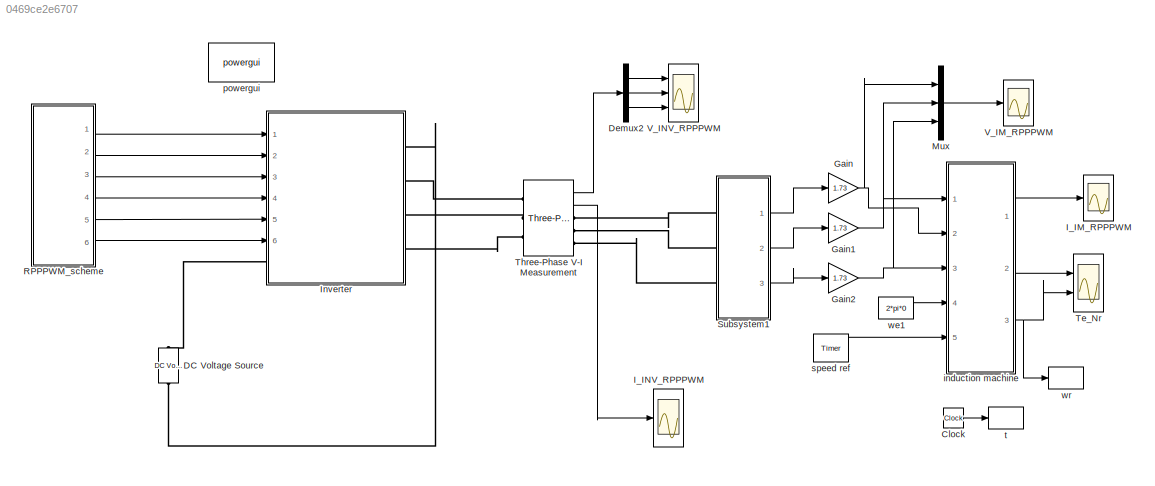
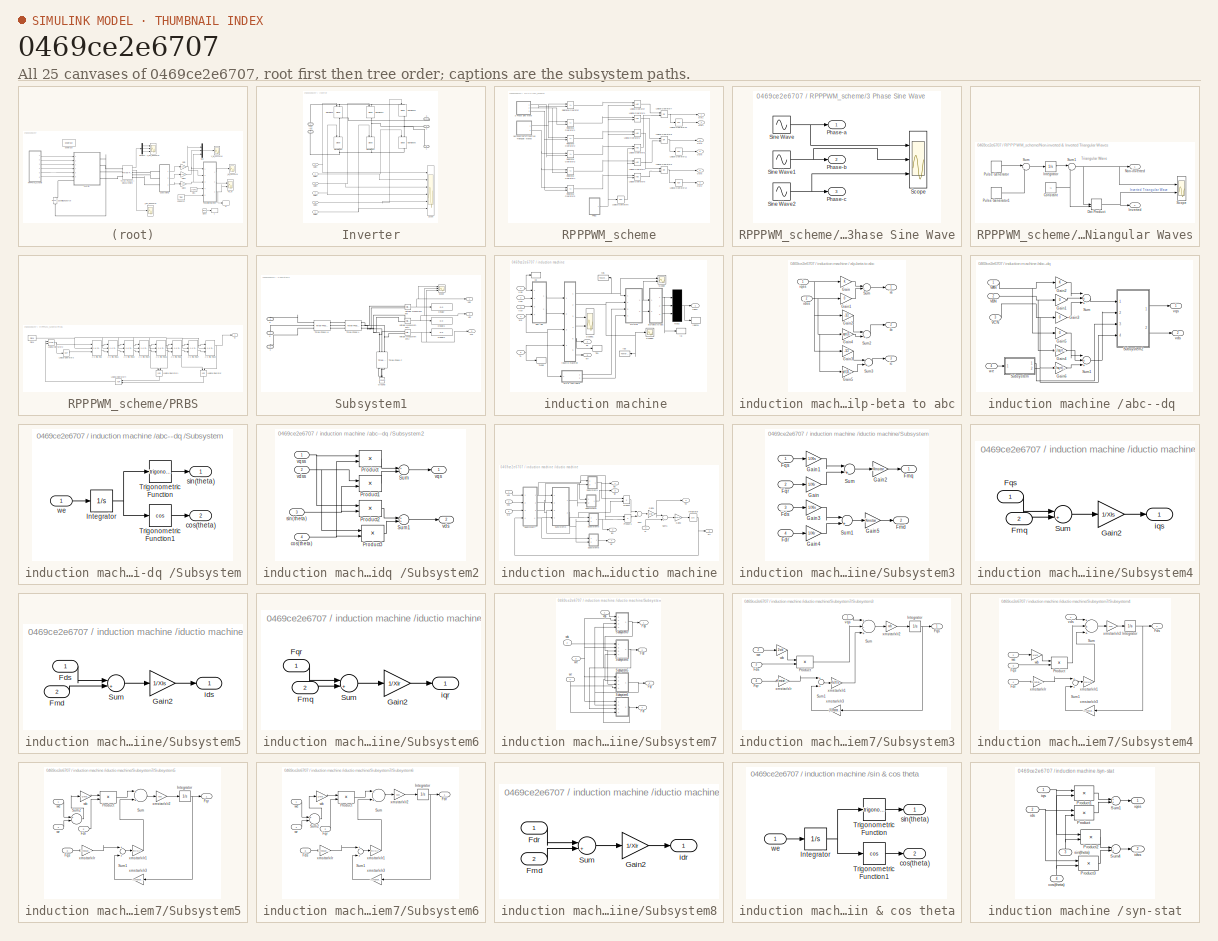
[diagram: thumbnail index - all 25 canvases of the model, root first then tree order]
MODEL slx_0469ce2e6707
KIND model
BLOCK [Clock] Clock
BLOCK [Reference] DC Voltage Source  REF=powerlib/Electrical
Sources/DC Voltage Source
  Amplitude = 400
  Measurements = None
  Ports = [0, 0, 0, 0, 0, 1, 1]
  SourceBlock = powerlib/Electrical\nSources/DC Voltage Source
  SourceType = DC Voltage Source
BLOCK [Demux] Demux2
  DisplayOption = bar
  Outputs = 3
  Ports = [1, 3]
BLOCK [Gain] Gain
  Gain = 1.73
  OutDataTypeStr = Inherit: Inherit via internal rule
  ParamDataTypeStr = Inherit: Inherit via internal rule
  SaturateOnIntegerOverflow = off
BLOCK [Gain] Gain1
  Gain = 1.73
  OutDataTypeStr = Inherit: Inherit via internal rule
  ParamDataTypeStr = Inherit: Inherit via internal rule
  SaturateOnIntegerOverflow = off
BLOCK [Gain] Gain2
  Gain = 1.73
  OutDataTypeStr = Inherit: Inherit via internal rule
  ParamDataTypeStr = Inherit: Inherit via internal rule
  SaturateOnIntegerOverflow = off
BLOCK [Scope] I_IM_RPPPWM
  DataFormat = StructureWithTime
  Floating = off
  MaxDataPoints = 50000
  NumInputPorts = 1
  Ports = [1]
  SampleTime = 0
  SaveName = I_IM_RPPPWM
  SaveToWorkspace = on
  ShowLegends = off
  YMax = 70
  YMin = -80
  ZoomMode = xonly
BLOCK [Scope] I_INV_RPPPWM
  DataFormat = StructureWithTime
  Floating = off
  MaxDataPoints = 50000
  NumInputPorts = 1
  Ports = [1]
  SaveName = I_INV_RPPPWM
  SaveToWorkspace = on
  ShowLegends = off
  YMax = 75
  YMin = -75
  ZoomMode = xonly
BLOCK [SubSystem] Inverter
  Ports = [6, 0, 0, 0, 0, 1, 4]
  RequestExecContextInheritance = off
BLOCK [PMIOPort] Inverter/+Vdc
  Port = 1
  Side = Left
BLOCK [PMIOPort] Inverter/-Vdc
  Port = 2
  Side = Right
BLOCK [Inport] Inverter/Gate1
  IconDisplay = Port number
BLOCK [Inport] Inverter/Gate2
  IconDisplay = Port number
  Port = 2
BLOCK [Inport] Inverter/Gate3
  IconDisplay = Port number
  Port = 3
BLOCK [Inport] Inverter/Gate4
  IconDisplay = Port number
  Port = 4
BLOCK [Inport] Inverter/Gate5
  IconDisplay = Port number
  Port = 5
BLOCK [Inport] Inverter/Gate6
  IconDisplay = Port number
  Port = 6
BLOCK [Reference] Inverter/IGBT//Diode  REF=powerlib/Power
Electronics/IGBT//Diode
  Cs = inf
  Measurements = on
  Ports = [1, 1, 0, 0, 0, 1, 1]
  Ron = 1e-3
  Rs = 1e5
  SourceBlock = powerlib/Power\nElectronics/IGBT//Diode
  SourceType = IGBT/Diode
BLOCK [Reference] Inverter/IGBT//Diode1  REF=powerlib/Power
Electronics/IGBT//Diode
  Cs = inf
  Measurements = on
  Ports = [1, 1, 0, 0, 0, 1, 1]
  Ron = 1e-3
  Rs = 1e5
  SourceBlock = powerlib/Power\nElectronics/IGBT//Diode
  SourceType = IGBT/Diode
BLOCK [Reference] Inverter/IGBT//Diode2  REF=powerlib/Power
Electronics/IGBT//Diode
  Cs = inf
  Measurements = on
  Ports = [1, 1, 0, 0, 0, 1, 1]
  Ron = 1e-3
  Rs = 1e5
  SourceBlock = powerlib/Power\nElectronics/IGBT//Diode
  SourceType = IGBT/Diode
BLOCK [Reference] Inverter/IGBT//Diode3  REF=powerlib/Power
Electronics/IGBT//Diode
  Cs = inf
  Measurements = on
  Ports = [1, 1, 0, 0, 0, 1, 1]
  Ron = 1e-3
  Rs = 1e5
  SourceBlock = powerlib/Power\nElectronics/IGBT//Diode
  SourceType = IGBT/Diode
BLOCK [Reference] Inverter/IGBT//Diode4  REF=powerlib/Power
Electronics/IGBT//Diode
  Cs = inf
  Measurements = on
  Ports = [1, 1, 0, 0, 0, 1, 1]
  Ron = 1e-3
  Rs = 1e5
  SourceBlock = powerlib/Power\nElectronics/IGBT//Diode
  SourceType = IGBT/Diode
BLOCK [Reference] Inverter/IGBT//Diode5  REF=powerlib/Power
Electronics/IGBT//Diode
  Cs = inf
  Measurements = on
  Ports = [1, 1, 0, 0, 0, 1, 1]
  Ron = 1e-3
  Rs = 1e5
  SourceBlock = powerlib/Power\nElectronics/IGBT//Diode
  SourceType = IGBT/Diode
BLOCK [Scope] Inverter/Scope
  Floating = off
  NumInputPorts = 6
  Ports = [6]
  ShowLegends = off
  YMax = 5~5~5~5~5~5
  YMin = -5~-5~-5~-5~-5~-5
BLOCK [PMIOPort] Inverter/a
  Port = 3
  Side = Right
BLOCK [PMIOPort] Inverter/b
  Port = 4
  Side = Right
BLOCK [PMIOPort] Inverter/c
  Port = 5
  Side = Right
BLOCK [Mux] Mux
  DisplayOption = bar
  Inputs = 3
  Ports = [3, 1]
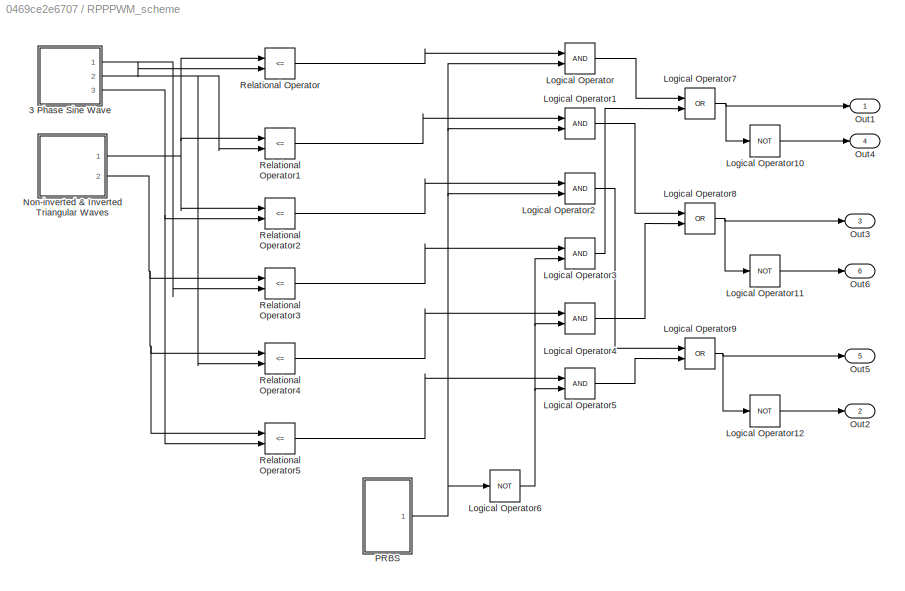
BLOCK [SubSystem] RPPPWM_scheme
  Ports = [0, 6]
  RequestExecContextInheritance = off
BLOCK [SubSystem] RPPPWM_scheme/3 Phase Sine Wave
  Ports = [0, 3]
  RequestExecContextInheritance = off
BLOCK [Outport] RPPPWM_scheme/3 Phase Sine Wave/	Phase-a
  IconDisplay = Port number
BLOCK [Outport] RPPPWM_scheme/3 Phase Sine Wave/Phase-b
  IconDisplay = Port number
  Port = 2
BLOCK [Outport] RPPPWM_scheme/3 Phase Sine Wave/Phase-c
  IconDisplay = Port number
  Port = 3
BLOCK [Scope] RPPPWM_scheme/3 Phase Sine Wave/Scope
  Floating = off
  NumInputPorts = 3
  Ports = [3]
  SaveName = ScopeData9
  ShowLegends = off
  YMax = 5~5~5
  YMin = -5~-5~-5
BLOCK [Sin] RPPPWM_scheme/3 Phase Sine Wave/Sine Wave
  Amplitude = 0.8
  Frequency = 314
  Ports = [0, 1]
  SampleTime = 0
BLOCK [Sin] RPPPWM_scheme/3 Phase Sine Wave/Sine Wave1
  Amplitude = 0.8
  Frequency = 314
  Phase = (2*pi)/3
  Ports = [0, 1]
  SampleTime = 0
BLOCK [Sin] RPPPWM_scheme/3 Phase Sine Wave/Sine Wave2
  Amplitude = 0.8
  Frequency = 314
  Phase = (4*pi)/3
  Ports = [0, 1]
  SampleTime = 0
BLOCK [Logic] RPPPWM_scheme/Logical Operator
  AllPortsSameDT = off
  OutDataTypeStr = boolean
  Ports = [2, 1]
BLOCK [Logic] RPPPWM_scheme/Logical Operator1
  AllPortsSameDT = off
  OutDataTypeStr = boolean
  Ports = [2, 1]
BLOCK [Logic] RPPPWM_scheme/Logical Operator10
  AllPortsSameDT = off
  Operator = NOT
  OutDataTypeStr = boolean
  Ports = [1, 1]
BLOCK [Logic] RPPPWM_scheme/Logical Operator11
  AllPortsSameDT = off
  Operator = NOT
  OutDataTypeStr = boolean
  Ports = [1, 1]
BLOCK [Logic] RPPPWM_scheme/Logical Operator12
  AllPortsSameDT = off
  Operator = NOT
  OutDataTypeStr = boolean
  Ports = [1, 1]
BLOCK [Logic] RPPPWM_scheme/Logical Operator2
  AllPortsSameDT = off
  OutDataTypeStr = boolean
  Ports = [2, 1]
BLOCK [Logic] RPPPWM_scheme/Logical Operator3
  AllPortsSameDT = off
  OutDataTypeStr = boolean
  Ports = [2, 1]
BLOCK [Logic] RPPPWM_scheme/Logical Operator4
  AllPortsSameDT = off
  OutDataTypeStr = boolean
  Ports = [2, 1]
BLOCK [Logic] RPPPWM_scheme/Logical Operator5
  AllPortsSameDT = off
  OutDataTypeStr = boolean
  Ports = [2, 1]
BLOCK [Logic] RPPPWM_scheme/Logical Operator6
  AllPortsSameDT = off
  Operator = NOT
  OutDataTypeStr = boolean
  Ports = [1, 1]
BLOCK [Logic] RPPPWM_scheme/Logical Operator7
  AllPortsSameDT = off
  Operator = OR
  OutDataTypeStr = boolean
  Ports = [2, 1]
BLOCK [Logic] RPPPWM_scheme/Logical Operator8
  AllPortsSameDT = off
  Operator = OR
  OutDataTypeStr = boolean
  Ports = [2, 1]
BLOCK [Logic] RPPPWM_scheme/Logical Operator9
  AllPortsSameDT = off
  Operator = OR
  OutDataTypeStr = boolean
  Ports = [2, 1]
BLOCK [SubSystem] RPPPWM_scheme/Non-inverted & Inverted Triangular Waves
  Ports = [0, 2]
  RequestExecContextInheritance = off
BLOCK [Constant] RPPPWM_scheme/Non-inverted & Inverted Triangular Waves/Constant
  Value = -1
BLOCK [DotProduct] RPPPWM_scheme/Non-inverted & Inverted Triangular Waves/Dot Product
  OutDataTypeStr = Inherit: Inherit via internal rule
BLOCK [Integrator] RPPPWM_scheme/Non-inverted & Inverted Triangular Waves/Integrator
  Ports = [1, 1]
BLOCK [Outport] RPPPWM_scheme/Non-inverted & Inverted Triangular Waves/Inverted
  IconDisplay = Port number
  Port = 2
BLOCK [Outport] RPPPWM_scheme/Non-inverted & Inverted Triangular Waves/Non-inverted
  IconDisplay = Port number
BLOCK [DiscretePulseGenerator] RPPPWM_scheme/Non-inverted & Inverted Triangular Waves/Pulse Generator
  Amplitude = 12000
  Period = 1e-3/3
  Ports = [0, 1]
  PulseType = Time based
  PulseWidth = 50
BLOCK [DiscretePulseGenerator] RPPPWM_scheme/Non-inverted & Inverted Triangular Waves/Pulse Generator1
  Amplitude = -12000
  Period = 1/3e3
  PhaseDelay = 1/6e3
  Ports = [0, 1]
  PulseType = Time based
  PulseWidth = 50
BLOCK [Scope] RPPPWM_scheme/Non-inverted & Inverted Triangular Waves/Scope
  Floating = off
  NumInputPorts = 2
  Ports = [2]
  SaveName = ScopeData6
  ShowLegends = off
  YMax = 37.5~2.5
  YMin = -2.5~-37.5
  ZoomMode = xonly
BLOCK [Sum] RPPPWM_scheme/Non-inverted & Inverted Triangular Waves/Sum
  IconShape = round
  InputSameDT = off
  Inputs = |++
  OutDataTypeStr = Inherit: Inherit via internal rule
  Ports = [2, 1]
  SaturateOnIntegerOverflow = off
BLOCK [Sum] RPPPWM_scheme/Non-inverted & Inverted Triangular Waves/Sum1
  IconShape = round
  InputSameDT = off
  Inputs = |++
  OutDataTypeStr = Inherit: Inherit via internal rule
  Ports = [2, 1]
  SaturateOnIntegerOverflow = off
BLOCK [Outport] RPPPWM_scheme/Out1
  IconDisplay = Port number
BLOCK [Outport] RPPPWM_scheme/Out2
  IconDisplay = Port number
  Port = 2
BLOCK [Outport] RPPPWM_scheme/Out3
  IconDisplay = Port number
  Port = 3
BLOCK [Outport] RPPPWM_scheme/Out4
  IconDisplay = Port number
  Port = 4
BLOCK [Outport] RPPPWM_scheme/Out5
  IconDisplay = Port number
  Port = 5
BLOCK [Outport] RPPPWM_scheme/Out6
  IconDisplay = Port number
  Port = 6
BLOCK [SubSystem] RPPPWM_scheme/PRBS
  Ports = [0, 1]
  RequestExecContextInheritance = off
BLOCK [Reference] RPPPWM_scheme/PRBS/Clock  REF=simulink_extras/Flip Flops/Clock
  Ports = [0, 1]
  SourceBlock = simulink_extras/Flip Flops/Clock
  SourceType = Digital clock
  period = 1/3e3
BLOCK [Reference] RPPPWM_scheme/PRBS/J-K Flip-Flop  REF=simulink_extras/Flip Flops/J-K
Flip-Flop
  Ports = [3, 2]
  SourceBlock = simulink_extras/Flip Flops/J-K\nFlip-Flop
  SourceType = JKFlipFlop
  initial_condition = 0
BLOCK [Reference] RPPPWM_scheme/PRBS/J-K Flip-Flop1  REF=simulink_extras/Flip Flops/J-K
Flip-Flop
  Ports = [3, 2]
  SourceBlock = simulink_extras/Flip Flops/J-K\nFlip-Flop
  SourceType = JKFlipFlop
  initial_condition = 0
BLOCK [Reference] RPPPWM_scheme/PRBS/J-K Flip-Flop2  REF=simulink_extras/Flip Flops/J-K
Flip-Flop
  Ports = [3, 2]
  SourceBlock = simulink_extras/Flip Flops/J-K\nFlip-Flop
  SourceType = JKFlipFlop
  initial_condition = 0
BLOCK [Reference] RPPPWM_scheme/PRBS/J-K Flip-Flop3  REF=simulink_extras/Flip Flops/J-K
Flip-Flop
  Ports = [3, 2]
  SourceBlock = simulink_extras/Flip Flops/J-K\nFlip-Flop
  SourceType = JKFlipFlop
  initial_condition = 0
BLOCK [Reference] RPPPWM_scheme/PRBS/J-K Flip-Flop4  REF=simulink_extras/Flip Flops/J-K
Flip-Flop
  Ports = [3, 2]
  SourceBlock = simulink_extras/Flip Flops/J-K\nFlip-Flop
  SourceType = JKFlipFlop
  initial_condition = 0
BLOCK [Reference] RPPPWM_scheme/PRBS/J-K Flip-Flop5  REF=simulink_extras/Flip Flops/J-K
Flip-Flop
  Ports = [3, 2]
  SourceBlock = simulink_extras/Flip Flops/J-K\nFlip-Flop
  SourceType = JKFlipFlop
  initial_condition = 0
BLOCK [Reference] RPPPWM_scheme/PRBS/J-K Flip-Flop6  REF=simulink_extras/Flip Flops/J-K
Flip-Flop
  Ports = [3, 2]
  SourceBlock = simulink_extras/Flip Flops/J-K\nFlip-Flop
  SourceType = JKFlipFlop
  initial_condition = 0
BLOCK [Reference] RPPPWM_scheme/PRBS/J-K Flip-Flop7  REF=simulink_extras/Flip Flops/J-K
Flip-Flop
  Ports = [3, 2]
  SourceBlock = simulink_extras/Flip Flops/J-K\nFlip-Flop
  SourceType = JKFlipFlop
  initial_condition = 0
BLOCK [Logic] RPPPWM_scheme/PRBS/Logical Operator
  AllPortsSameDT = off
  Operator = XOR
  OutDataTypeStr = boolean
  Ports = [2, 1]
BLOCK [Logic] RPPPWM_scheme/PRBS/Logical Operator1
  AllPortsSameDT = off
  Operator = XOR
  OutDataTypeStr = boolean
  Ports = [2, 1]
BLOCK [Logic] RPPPWM_scheme/PRBS/Logical Operator2
  AllPortsSameDT = off
  Operator = NAND
  OutDataTypeStr = boolean
  Ports = [2, 1]
BLOCK [Logic] RPPPWM_scheme/PRBS/Logical Operator3
  AllPortsSameDT = off
  Operator = NOT
  OutDataTypeStr = boolean
  Ports = [1, 1]
BLOCK [Logic] RPPPWM_scheme/PRBS/Logical Operator4
  AllPortsSameDT = off
  Operator = XOR
  OutDataTypeStr = boolean
  Ports = [2, 1]
BLOCK [Outport] RPPPWM_scheme/PRBS/Q
  IconDisplay = Port number
BLOCK [RelationalOperator] RPPPWM_scheme/Relational Operator
  InputSameDT = off
  Operator = <=
  OutDataTypeStr = boolean
  Ports = [2, 1]
BLOCK [RelationalOperator] RPPPWM_scheme/Relational Operator1
  InputSameDT = off
  Operator = <=
  OutDataTypeStr = boolean
  Ports = [2, 1]
BLOCK [RelationalOperator] RPPPWM_scheme/Relational Operator2
  InputSameDT = off
  Operator = <=
  OutDataTypeStr = boolean
  Ports = [2, 1]
BLOCK [RelationalOperator] RPPPWM_scheme/Relational Operator3
  InputSameDT = off
  Operator = <=
  OutDataTypeStr = boolean
  Ports = [2, 1]
BLOCK [RelationalOperator] RPPPWM_scheme/Relational Operator4
  InputSameDT = off
  Operator = <=
  OutDataTypeStr = boolean
  Ports = [2, 1]
BLOCK [RelationalOperator] RPPPWM_scheme/Relational Operator5
  InputSameDT = off
  Operator = <=
  OutDataTypeStr = boolean
  Ports = [2, 1]
BLOCK [SubSystem] Subsystem1
  Ports = [0, 3, 0, 0, 0, 3]
  RequestExecContextInheritance = off
BLOCK [Display] Subsystem1/Display
  Decimation = 1
  Ports = [1]
BLOCK [Display] Subsystem1/Display1
  Decimation = 1
  Ports = [1]
BLOCK [Display] Subsystem1/Display2
  Decimation = 1
  Ports = [1]
BLOCK [Reference] Subsystem1/Ground  REF=powerlib/Elements/Ground
  LConnTagsString = a
  Ports = [0, 0, 0, 0, 0, 1]
  SourceBlock = powerlib/Elements/Ground
  SourceType = Ground
BLOCK [Scope] Subsystem1/Scope
  Floating = off
  NumInputPorts = 3
  Ports = [3]
  SaveName = ScopeData3
  ShowLegends = off
  YMax = 200~200~200
  YMin = -200~-200~-200
  ZoomMode = xonly
BLOCK [Reference] Subsystem1/Three-Phase C   REF=powerlib/Elements/Three-Phase
Series RLC Branch
  AttributesFormatString = \n
  BranchType = C
  Capacitance = 0.2420e-3
  Inductance = 10
  LConnTagsString = A|B|C
  Measurements = None
  Ports = [0, 0, 0, 0, 0, 3, 3]
  RConnTagsString = A|B|C
  Resistance = 1
  SourceBlock = powerlib/Elements/Three-Phase\nSeries RLC Branch
  SourceType = Three-Phase Series RLC Branch
BLOCK [Reference] Subsystem1/Three-Phase L  REF=powerlib/Elements/Three-Phase
Series RLC Branch
  AttributesFormatString = \n
  BranchType = L
  Capacitance = 1e-6
  Inductance = 0.0150e-2
  LConnTagsString = A|B|C
  Measurements = None
  Ports = [0, 0, 0, 0, 0, 3, 3]
  RConnTagsString = A|B|C
  Resistance = 1
  SourceBlock = powerlib/Elements/Three-Phase\nSeries RLC Branch
  SourceType = Three-Phase Series RLC Branch
BLOCK [Reference] Subsystem1/Three-Phase L1  REF=powerlib/Elements/Three-Phase
Series RLC Branch
  AttributesFormatString = \n
  BranchType = R
  Capacitance = 1e-6
  Inductance = 1e-1
  LConnTagsString = A|B|C
  Measurements = None
  Ports = [0, 0, 0, 0, 0, 3, 3]
  RConnTagsString = A|B|C
  Resistance = 15
  SourceBlock = powerlib/Elements/Three-Phase\nSeries RLC Branch
  SourceType = Three-Phase Series RLC Branch
BLOCK [Outport] Subsystem1/Vab
  IconDisplay = Port number
BLOCK [Outport] Subsystem1/Vbc
  IconDisplay = Port number
  Port = 2
BLOCK [Outport] Subsystem1/Vca
  IconDisplay = Port number
  Port = 3
BLOCK [Reference] Subsystem1/Voltage Measurement  REF=powerlib/Measurements/Voltage Measurement
  OutputType = Complex
  PSBequivalent = 0
  PhasorSimulation = off
  Ports = [0, 1, 0, 0, 0, 2]
  SourceBlock = powerlib/Measurements/Voltage Measurement
  SourceType = Voltage Measurement
  UserDataPersistent = on
BLOCK [Reference] Subsystem1/Voltage Measurement1  REF=powerlib/Measurements/Voltage Measurement
  OutputType = Complex
  PSBequivalent = 0
  PhasorSimulation = off
  Ports = [0, 1, 0, 0, 0, 2]
  SourceBlock = powerlib/Measurements/Voltage Measurement
  SourceType = Voltage Measurement
  UserDataPersistent = on
BLOCK [Reference] Subsystem1/Voltage Measurement2  REF=powerlib/Measurements/Voltage Measurement
  OutputType = Complex
  PSBequivalent = 0
  PhasorSimulation = off
  Ports = [0, 1, 0, 0, 0, 2]
  SourceBlock = powerlib/Measurements/Voltage Measurement
  SourceType = Voltage Measurement
  UserDataPersistent = on
BLOCK [PMIOPort] Subsystem1/a
  Port = 1
  Side = Left
BLOCK [PMIOPort] Subsystem1/b
  Port = 2
  Side = Left
BLOCK [PMIOPort] Subsystem1/c
  Port = 3
  Side = Left
BLOCK [Scope] Te_Nr
  DataFormat = StructureWithTime
  Floating = off
  LimitDataPoints = off
  NumInputPorts = 2
  Ports = [2]
  SampleTime = 0
  SaveName = ScopeData2
  ShowLegends = off
  TimeRange = 1.5
  YMax = 75~315
  YMin = -35~265
  ZoomMode = xonly
BLOCK [Reference] Three-Phase V-I Measurement  REF=powerlib/Measurements/Three-Phase
V-I Measurement
  CurrentMeasurement = yes
  Ipu = off
  LabelI = Iabc
  LabelV = Vabc
  OutputType = Complex
  PSBequivalent = 0
  Pbase = 100e6
  PhasorSimulation = off
  Ports = [0, 2, 0, 0, 0, 3, 3]
  SetLabelI = off
  SetLabelV = off
  SourceBlock = powerlib/Measurements/Three-Phase\nV-I Measurement
  SourceType = Three-Phase VI Measurement
  Vbase = 500e3
  VoltageMeasurement = phase-to-phase
  Vpu = off
  VpuLL = off
BLOCK [Scope] V_IM_RPPPWM
  DataFormat = StructureWithTime
  Floating = off
  MaxDataPoints = 50000
  NumInputPorts = 1
  Ports = [1]
  SampleTime = 0
  SaveName = V_IM_RPPPWM
  SaveToWorkspace = on
  ShowLegends = off
  YMax = 700
  YMin = -700
  ZoomMode = xonly
BLOCK [Scope] V_INV_RPPPWM
  DataFormat = StructureWithTime
  Floating = off
  MaxDataPoints = 50000
  NumInputPorts = 3
  Ports = [3]
  SaveName = V_INV_RPPPWM
  SaveToWorkspace = on
  ShowLegends = off
  YMax = 225~5~5
  YMin = -225~-5~-5
  ZoomMode = xonly
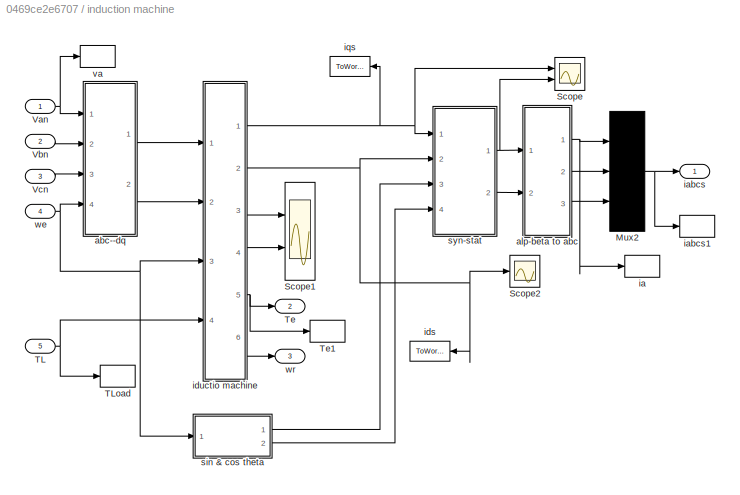
BLOCK [SubSystem] induction machine 
  Ports = [5, 3]
  RequestExecContextInheritance = off
BLOCK [SubSystem] induction machine / alp-beta to abc
  Ports = [2, 3]
  RequestExecContextInheritance = off
BLOCK [Gain] induction machine / alp-beta to abc/Gain
BLOCK [Gain] induction machine / alp-beta to abc/Gain1
  Gain = 0
BLOCK [Gain] induction machine / alp-beta to abc/Gain2
  Gain = -1/2
BLOCK [Gain] induction machine / alp-beta to abc/Gain3
  Gain = -1/2
BLOCK [Gain] induction machine / alp-beta to abc/Gain4
  Gain = -sqrt(3)/2
BLOCK [Gain] induction machine / alp-beta to abc/Gain5
  Gain = sqrt(3)/2
BLOCK [Sum] induction machine / alp-beta to abc/Sum
  InputSameDT = off
  Inputs = |++
  OutDataTypeStr = Inherit: Inherit via internal rule
  Ports = [2, 1]
BLOCK [Sum] induction machine / alp-beta to abc/Sum2
  InputSameDT = off
  Inputs = |++
  OutDataTypeStr = Inherit: Inherit via internal rule
  Ports = [2, 1]
BLOCK [Sum] induction machine / alp-beta to abc/Sum3
  InputSameDT = off
  Inputs = |++
  OutDataTypeStr = Inherit: Inherit via internal rule
  Ports = [2, 1]
BLOCK [Outport] induction machine / alp-beta to abc/ia
  IconDisplay = Port number
BLOCK [Outport] induction machine / alp-beta to abc/ib
  IconDisplay = Port number
  Port = 2
BLOCK [Outport] induction machine / alp-beta to abc/ic
  IconDisplay = Port number
  Port = 3
BLOCK [Inport] induction machine / alp-beta to abc/idss
  IconDisplay = Port number
  Port = 2
BLOCK [Inport] induction machine / alp-beta to abc/iqss
  IconDisplay = Port number
BLOCK [Mux] induction machine /Mux2
  Inputs = 3
  Ports = [3, 1]
BLOCK [Scope] induction machine /Scope
  DataFormat = StructureWithTime
  Floating = off
  LimitDataPoints = off
  NumInputPorts = 2
  Ports = [2]
  SampleTime = 0
  SaveName = ScopeData11
  ShowLegends = off
  YMax = 50~5
  YMin = -60~-5
  ZoomMode = xonly
BLOCK [Scope] induction machine /Scope1
  DataFormat = StructureWithTime
  Floating = off
  LimitDataPoints = off
  NumInputPorts = 2
  Ports = [2]
  SampleInput = on
  SampleTime = 0
  SaveName = ScopeData1
  ShowLegends = off
  TimeRange = 0.25
  YMax = 350~5
  YMin = -350~-5
  ZoomMode = xonly
BLOCK [Scope] induction machine /Scope2
  DataFormat = StructureWithTime
  Floating = off
  LimitDataPoints = off
  NumInputPorts = 1
  Ports = [1]
  SampleTime = 0
  SaveName = ScopeData12
  ShowLegends = off
  YMax = 50
  YMin = -60
  ZoomMode = xonly
BLOCK [Inport] induction machine /TL
  IconDisplay = Port number
  Port = 5
BLOCK [ToWorkspace] induction machine /TLoad
  MaxDataPoints = inf
  Ports = [1]
  SampleTime = -1
  VariableName = TL
BLOCK [Outport] induction machine /Te
  IconDisplay = Port number
  Port = 2
BLOCK [ToWorkspace] induction machine /Te1
  MaxDataPoints = inf
  Ports = [1]
  SampleTime = -1
  VariableName = Te
BLOCK [Inport] induction machine /Van
  IconDisplay = Port number
BLOCK [Inport] induction machine /Vbn
  IconDisplay = Port number
  Port = 2
BLOCK [Inport] induction machine /Vcn
  IconDisplay = Port number
  Port = 3
BLOCK [SubSystem] induction machine /abc--dq 
  Ports = [4, 2]
  RequestExecContextInheritance = off
BLOCK [Gain] induction machine /abc--dq /Gain1
  Gain = 0
BLOCK [Gain] induction machine /abc--dq /Gain2
BLOCK [Gain] induction machine /abc--dq /Gain3
  Gain = 0
BLOCK [Gain] induction machine /abc--dq /Gain4
  Gain = -1/sqrt(3)
BLOCK [Gain] induction machine /abc--dq /Gain5
  Gain = 0
BLOCK [Gain] induction machine /abc--dq /Gain6
  Gain = 1/sqrt(3)
BLOCK [SubSystem] induction machine /abc--dq /Subsystem
  Ports = [1, 2]
  RequestExecContextInheritance = off
BLOCK [Integrator] induction machine /abc--dq /Subsystem/Integrator
  Ports = [1, 1]
BLOCK [Trigonometry] induction machine /abc--dq /Subsystem/Trigonometric Function
  Ports = [1, 1]
BLOCK [Trigonometry] induction machine /abc--dq /Subsystem/Trigonometric Function1
  Operator = cos
  Ports = [1, 1]
BLOCK [Outport] induction machine /abc--dq /Subsystem/cos(theta)
  IconDisplay = Port number
  Port = 2
BLOCK [Outport] induction machine /abc--dq /Subsystem/sin(theta)
  IconDisplay = Port number
BLOCK [Inport] induction machine /abc--dq /Subsystem/we
  IconDisplay = Port number
BLOCK [SubSystem] induction machine /abc--dq /Subsystem2
  Ports = [4, 2]
  RequestExecContextInheritance = off
BLOCK [Product] induction machine /abc--dq /Subsystem2/Product
  InputSameDT = off
  Ports = [2, 1]
  RndMeth = Floor
BLOCK [Product] induction machine /abc--dq /Subsystem2/Product1
  InputSameDT = off
  Ports = [2, 1]
  RndMeth = Floor
BLOCK [Product] induction machine /abc--dq /Subsystem2/Product2
  InputSameDT = off
  Ports = [2, 1]
  RndMeth = Floor
BLOCK [Product] induction machine /abc--dq /Subsystem2/Product3
  InputSameDT = off
  Ports = [2, 1]
  RndMeth = Floor
BLOCK [Sum] induction machine /abc--dq /Subsystem2/Sum
  InputSameDT = off
  Inputs = +-
  OutDataTypeStr = Inherit: Inherit via internal rule
  Ports = [2, 1]
BLOCK [Sum] induction machine /abc--dq /Subsystem2/Sum1
  InputSameDT = off
  OutDataTypeStr = Inherit: Inherit via internal rule
  Ports = [2, 1]
BLOCK [Inport] induction machine /abc--dq /Subsystem2/cos(theta)
  IconDisplay = Port number
  Port = 4
BLOCK [Inport] induction machine /abc--dq /Subsystem2/sin(theta)
  IconDisplay = Port number
  Port = 3
BLOCK [Outport] induction machine /abc--dq /Subsystem2/vds
  IconDisplay = Port number
  Port = 2
BLOCK [Inport] induction machine /abc--dq /Subsystem2/vdss
  IconDisplay = Port number
  Port = 2
BLOCK [Outport] induction machine /abc--dq /Subsystem2/vqs
  IconDisplay = Port number
BLOCK [Inport] induction machine /abc--dq /Subsystem2/vqss
  IconDisplay = Port number
BLOCK [Sum] induction machine /abc--dq /Sum
  InputSameDT = off
  Inputs = |+++
  OutDataTypeStr = Inherit: Inherit via internal rule
  Ports = [3, 1]
BLOCK [Sum] induction machine /abc--dq /Sum1
  InputSameDT = off
  Inputs = |+++
  OutDataTypeStr = Inherit: Inherit via internal rule
  Ports = [3, 1]
BLOCK [Inport] induction machine /abc--dq /VAN
  IconDisplay = Port number
BLOCK [Inport] induction machine /abc--dq /VBN
  IconDisplay = Port number
  Port = 2
BLOCK [Inport] induction machine /abc--dq /VCN
  IconDisplay = Port number
  Port = 3
BLOCK [Outport] induction machine /abc--dq /vds
  IconDisplay = Port number
  Port = 2
BLOCK [Outport] induction machine /abc--dq /vqs
  IconDisplay = Port number
BLOCK [Inport] induction machine /abc--dq /we
  IconDisplay = Port number
  Port = 4
BLOCK [ToWorkspace] induction machine /ia
  MaxDataPoints = inf
  Ports = [1]
  SampleTime = -1
  VariableName = ia
BLOCK [Outport] induction machine /iabcs
  IconDisplay = Port number
BLOCK [ToWorkspace] induction machine /iabcs1
  MaxDataPoints = inf
  Ports = [1]
  SampleTime = -1
  VariableName = iabcs
BLOCK [ToWorkspace] induction machine /ids
  MaxDataPoints = inf
  Ports = [1]
  SampleTime = -1
  VariableName = ids
BLOCK [SubSystem] induction machine /iductio machine
  Ports = [4, 6]
  RequestExecContextInheritance = off
BLOCK [Gain] induction machine /iductio machine/Gain1
  Gain = 1.5*p/(2*wb)
BLOCK [Gain] induction machine /iductio machine/Gain2
  Gain = p/(2*J)
BLOCK [Integrator] induction machine /iductio machine/Integrator
  Ports = [1, 1]
BLOCK [Product] induction machine /iductio machine/Product
  InputSameDT = off
  Ports = [2, 1]
  RndMeth = Floor
BLOCK [Product] induction machine /iductio machine/Product1
  InputSameDT = off
  Ports = [2, 1]
  RndMeth = Floor
BLOCK [SubSystem] induction machine /iductio machine/Subsystem3
  Ports = [4, 2]
  RequestExecContextInheritance = off
BLOCK [Inport] induction machine /iductio machine/Subsystem3/Fdr
  IconDisplay = Port number
  Port = 4
BLOCK [Inport] induction machine /iductio machine/Subsystem3/Fds
  IconDisplay = Port number
  Port = 3
BLOCK [Outport] induction machine /iductio machine/Subsystem3/Fmd
  IconDisplay = Port number
  Port = 2
BLOCK [Outport] induction machine /iductio machine/Subsystem3/Fmq
  IconDisplay = Port number
BLOCK [Inport] induction machine /iductio machine/Subsystem3/Fqr
  IconDisplay = Port number
  Port = 2
BLOCK [Inport] induction machine /iductio machine/Subsystem3/Fqs
  IconDisplay = Port number
BLOCK [Gain] induction machine /iductio machine/Subsystem3/Gain
  Gain = 1/Xlr
BLOCK [Gain] induction machine /iductio machine/Subsystem3/Gain1
  Gain = 1/Xls
BLOCK [Gain] induction machine /iductio machine/Subsystem3/Gain2
  Gain = Xmstar
BLOCK [Gain] induction machine /iductio machine/Subsystem3/Gain3
  Gain = 1/Xls
BLOCK [Gain] induction machine /iductio machine/Subsystem3/Gain4
  Gain = 1/Xlr
BLOCK [Gain] induction machine /iductio machine/Subsystem3/Gain5
  Gain = Xmstar
BLOCK [Sum] induction machine /iductio machine/Subsystem3/Sum
  InputSameDT = off
  Inputs = |++
  OutDataTypeStr = Inherit: Inherit via internal rule
  Ports = [2, 1]
BLOCK [Sum] induction machine /iductio machine/Subsystem3/Sum1
  InputSameDT = off
  Inputs = |++
  OutDataTypeStr = Inherit: Inherit via internal rule
  Ports = [2, 1]
BLOCK [SubSystem] induction machine /iductio machine/Subsystem4
  Ports = [2, 1]
  RequestExecContextInheritance = off
BLOCK [Inport] induction machine /iductio machine/Subsystem4/Fmq
  IconDisplay = Port number
  Port = 2
BLOCK [Inport] induction machine /iductio machine/Subsystem4/Fqs
  IconDisplay = Port number
BLOCK [Gain] induction machine /iductio machine/Subsystem4/Gain2
  Gain = 1/Xls
BLOCK [Sum] induction machine /iductio machine/Subsystem4/Sum
  InputSameDT = off
  Inputs = |+-
  OutDataTypeStr = Inherit: Inherit via internal rule
  Ports = [2, 1]
BLOCK [Outport] induction machine /iductio machine/Subsystem4/iqs
  IconDisplay = Port number
BLOCK [SubSystem] induction machine /iductio machine/Subsystem5
  Ports = [2, 1]
  RequestExecContextInheritance = off
BLOCK [Inport] induction machine /iductio machine/Subsystem5/Fds
  IconDisplay = Port number
BLOCK [Inport] induction machine /iductio machine/Subsystem5/Fmd
  IconDisplay = Port number
  Port = 2
BLOCK [Gain] induction machine /iductio machine/Subsystem5/Gain2
  Gain = 1/Xls
BLOCK [Sum] induction machine /iductio machine/Subsystem5/Sum
  InputSameDT = off
  Inputs = |+-
  OutDataTypeStr = Inherit: Inherit via internal rule
  Ports = [2, 1]
BLOCK [Outport] induction machine /iductio machine/Subsystem5/ids
  IconDisplay = Port number
BLOCK [SubSystem] induction machine /iductio machine/Subsystem6
  Ports = [2, 1]
  RequestExecContextInheritance = off
BLOCK [Inport] induction machine /iductio machine/Subsystem6/Fmq
  IconDisplay = Port number
  Port = 2
BLOCK [Inport] induction machine /iductio machine/Subsystem6/Fqr
  IconDisplay = Port number
BLOCK [Gain] induction machine /iductio machine/Subsystem6/Gain2
  Gain = 1/Xlr
BLOCK [Sum] induction machine /iductio machine/Subsystem6/Sum
  InputSameDT = off
  Inputs = |+-
  OutDataTypeStr = Inherit: Inherit via internal rule
  Ports = [2, 1]
BLOCK [Outport] induction machine /iductio machine/Subsystem6/iqr
  IconDisplay = Port number
BLOCK [SubSystem] induction machine /iductio machine/Subsystem7
  Ports = [4, 4]
  RequestExecContextInheritance = off
BLOCK [Outport] induction machine /iductio machine/Subsystem7/Fdr
  IconDisplay = Port number
  Port = 4
BLOCK [Outport] induction machine /iductio machine/Subsystem7/Fds
  IconDisplay = Port number
  Port = 2
BLOCK [Outport] induction machine /iductio machine/Subsystem7/Fqr
  IconDisplay = Port number
  Port = 3
BLOCK [Outport] induction machine /iductio machine/Subsystem7/Fqs
  IconDisplay = Port number
BLOCK [SubSystem] induction machine /iductio machine/Subsystem7/Subsystem3
  Ports = [4, 1]
  RequestExecContextInheritance = off
BLOCK [Inport] induction machine /iductio machine/Subsystem7/Subsystem3/Fds
  IconDisplay = Port number
  Port = 3
BLOCK [Inport] induction machine /iductio machine/Subsystem7/Subsystem3/Fqr
  IconDisplay = Port number
  Port = 4
BLOCK [Outport] induction machine /iductio machine/Subsystem7/Subsystem3/Fqs
  IconDisplay = Port number
BLOCK [Integrator] induction machine /iductio machine/Subsystem7/Subsystem3/Integrator
  InitialCondition = 0.00001
  Ports = [1, 1]
BLOCK [Product] induction machine /iductio machine/Subsystem7/Subsystem3/Product
  InputSameDT = off
  Ports = [2, 1]
  RndMeth = Floor
BLOCK [Sum] induction machine /iductio machine/Subsystem7/Subsystem3/Sum
  InputSameDT = off
  Inputs = +-+
  OutDataTypeStr = Inherit: Inherit via internal rule
  Ports = [3, 1]
BLOCK [Sum] induction machine /iductio machine/Subsystem7/Subsystem3/Sum1
  InputSameDT = off
  OutDataTypeStr = Inherit: Inherit via internal rule
  Ports = [2, 1]
BLOCK [Inport] induction machine /iductio machine/Subsystem7/Subsystem3/vqs
  IconDisplay = Port number
BLOCK [Gain] induction machine /iductio machine/Subsystem7/Subsystem3/wb
  Gain = 1/wb
BLOCK [Inport] induction machine /iductio machine/Subsystem7/Subsystem3/we
  IconDisplay = Port number
  Port = 2
BLOCK [Gain] induction machine /iductio machine/Subsystem7/Subsystem3/xmstar//xlr
  Gain = Xmstar/Xlr
BLOCK [Gain] induction machine /iductio machine/Subsystem7/Subsystem3/xmstar//xlr1
  Gain = Rs/Xls
BLOCK [Gain] induction machine /iductio machine/Subsystem7/Subsystem3/xmstar//xlr2
  Gain = wb
BLOCK [Gain] induction machine /iductio machine/Subsystem7/Subsystem3/xmstar//xlr3
  Gain = (Xmstar/Xls)-1
BLOCK [SubSystem] induction machine /iductio machine/Subsystem7/Subsystem4
  Ports = [4, 1]
  RequestExecContextInheritance = off
BLOCK [Inport] induction machine /iductio machine/Subsystem7/Subsystem4/Fdr
  IconDisplay = Port number
  Port = 4
BLOCK [Outport] induction machine /iductio machine/Subsystem7/Subsystem4/Fds
  IconDisplay = Port number
BLOCK [Inport] induction machine /iductio machine/Subsystem7/Subsystem4/Fqs
  IconDisplay = Port number
  Port = 3
BLOCK [Integrator] induction machine /iductio machine/Subsystem7/Subsystem4/Integrator
  InitialCondition = 0.00001
  Ports = [1, 1]
BLOCK [Product] induction machine /iductio machine/Subsystem7/Subsystem4/Product
  InputSameDT = off
  Ports = [2, 1]
  RndMeth = Floor
BLOCK [Sum] induction machine /iductio machine/Subsystem7/Subsystem4/Sum
  InputSameDT = off
  Inputs = +++
  OutDataTypeStr = Inherit: Inherit via internal rule
  Ports = [3, 1]
BLOCK [Sum] induction machine /iductio machine/Subsystem7/Subsystem4/Sum1
  InputSameDT = off
  OutDataTypeStr = Inherit: Inherit via internal rule
  Ports = [2, 1]
BLOCK [Inport] induction machine /iductio machine/Subsystem7/Subsystem4/vds
  IconDisplay = Port number
BLOCK [Gain] induction machine /iductio machine/Subsystem7/Subsystem4/wb
  Gain = 1/wb
BLOCK [Inport] induction machine /iductio machine/Subsystem7/Subsystem4/we
  IconDisplay = Port number
  Port = 2
BLOCK [Gain] induction machine /iductio machine/Subsystem7/Subsystem4/xmstar//xlr
  Gain = Xmstar/Xlr
BLOCK [Gain] induction machine /iductio machine/Subsystem7/Subsystem4/xmstar//xlr1
  Gain = Rs/Xls
BLOCK [Gain] induction machine /iductio machine/Subsystem7/Subsystem4/xmstar//xlr2
  Gain = wb
BLOCK [Gain] induction machine /iductio machine/Subsystem7/Subsystem4/xmstar//xlr3
  Gain = (Xmstar/Xls)-1
BLOCK [SubSystem] induction machine /iductio machine/Subsystem7/Subsystem5
  Ports = [4, 1]
  RequestExecContextInheritance = off
BLOCK [Inport] induction machine /iductio machine/Subsystem7/Subsystem5/Fdr
  IconDisplay = Port number
  Port = 2
BLOCK [Outport] induction machine /iductio machine/Subsystem7/Subsystem5/Fqr
  IconDisplay = Port number
BLOCK [Inport] induction machine /iductio machine/Subsystem7/Subsystem5/Fqs
  IconDisplay = Port number
  Port = 3
BLOCK [Integrator] induction machine /iductio machine/Subsystem7/Subsystem5/Integrator
  Ports = [1, 1]
BLOCK [Product] induction machine /iductio machine/Subsystem7/Subsystem5/Product
  InputSameDT = off
  Ports = [2, 1]
  RndMeth = Floor
BLOCK [Sum] induction machine /iductio machine/Subsystem7/Subsystem5/Sum
  InputSameDT = off
  OutDataTypeStr = Inherit: Inherit via internal rule
  Ports = [2, 1]
BLOCK [Sum] induction machine /iductio machine/Subsystem7/Subsystem5/Sum1
  InputSameDT = off
  OutDataTypeStr = Inherit: Inherit via internal rule
  Ports = [2, 1]
BLOCK [Sum] induction machine /iductio machine/Subsystem7/Subsystem5/Sum2
  InputSameDT = off
  Inputs = +-
  OutDataTypeStr = Inherit: Inherit via internal rule
  Ports = [2, 1]
BLOCK [Gain] induction machine /iductio machine/Subsystem7/Subsystem5/wb
  Gain = -1/wb
BLOCK [Inport] induction machine /iductio machine/Subsystem7/Subsystem5/we
  IconDisplay = Port number
BLOCK [Inport] induction machine /iductio machine/Subsystem7/Subsystem5/wr
  IconDisplay = Port number
  Port = 4
BLOCK [Gain] induction machine /iductio machine/Subsystem7/Subsystem5/xmstar//xlr
  Gain = Xmstar/Xls
BLOCK [Gain] induction machine /iductio machine/Subsystem7/Subsystem5/xmstar//xlr1
  Gain = Rr/Xlr
BLOCK [Gain] induction machine /iductio machine/Subsystem7/Subsystem5/xmstar//xlr2
  Gain = wb
BLOCK [Gain] induction machine /iductio machine/Subsystem7/Subsystem5/xmstar//xlr3
  Gain = (Xmstar/Xlr)-1
BLOCK [SubSystem] induction machine /iductio machine/Subsystem7/Subsystem6
  Ports = [4, 1]
  RequestExecContextInheritance = off
BLOCK [Outport] induction machine /iductio machine/Subsystem7/Subsystem6/Fdr
  IconDisplay = Port number
BLOCK [Inport] induction machine /iductio machine/Subsystem7/Subsystem6/Fds
  IconDisplay = Port number
  Port = 3
BLOCK [Inport] induction machine /iductio machine/Subsystem7/Subsystem6/Fqr
  IconDisplay = Port number
  Port = 2
BLOCK [Integrator] induction machine /iductio machine/Subsystem7/Subsystem6/Integrator
  InitialCondition = 0.00001
  Ports = [1, 1]
BLOCK [Product] induction machine /iductio machine/Subsystem7/Subsystem6/Product
  InputSameDT = off
  Ports = [2, 1]
  RndMeth = Floor
BLOCK [Sum] induction machine /iductio machine/Subsystem7/Subsystem6/Sum
  InputSameDT = off
  OutDataTypeStr = Inherit: Inherit via internal rule
  Ports = [2, 1]
BLOCK [Sum] induction machine /iductio machine/Subsystem7/Subsystem6/Sum1
  InputSameDT = off
  OutDataTypeStr = Inherit: Inherit via internal rule
  Ports = [2, 1]
BLOCK [Sum] induction machine /iductio machine/Subsystem7/Subsystem6/Sum2
  InputSameDT = off
  Inputs = +-
  OutDataTypeStr = Inherit: Inherit via internal rule
  Ports = [2, 1]
BLOCK [Gain] induction machine /iductio machine/Subsystem7/Subsystem6/wb
  Gain = 1/wb
BLOCK [Inport] induction machine /iductio machine/Subsystem7/Subsystem6/we
  IconDisplay = Port number
BLOCK [Inport] induction machine /iductio machine/Subsystem7/Subsystem6/wr
  IconDisplay = Port number
  Port = 4
BLOCK [Gain] induction machine /iductio machine/Subsystem7/Subsystem6/xmstar//xlr
  Gain = Xmstar/Xls
BLOCK [Gain] induction machine /iductio machine/Subsystem7/Subsystem6/xmstar//xlr1
  Gain = Rr/Xlr
BLOCK [Gain] induction machine /iductio machine/Subsystem7/Subsystem6/xmstar//xlr2
  Gain = wb
BLOCK [Gain] induction machine /iductio machine/Subsystem7/Subsystem6/xmstar//xlr3
  Gain = (Xmstar/Xlr)-1
BLOCK [Inport] induction machine /iductio machine/Subsystem7/vds
  IconDisplay = Port number
  Port = 2
BLOCK [Inport] induction machine /iductio machine/Subsystem7/vqs
  IconDisplay = Port number
BLOCK [Inport] induction machine /iductio machine/Subsystem7/we
  IconDisplay = Port number
  Port = 3
BLOCK [Inport] induction machine /iductio machine/Subsystem7/wr
  IconDisplay = Port number
  Port = 4
BLOCK [SubSystem] induction machine /iductio machine/Subsystem8
  Ports = [2, 1]
  RequestExecContextInheritance = off
BLOCK [Inport] induction machine /iductio machine/Subsystem8/Fdr
  IconDisplay = Port number
BLOCK [Inport] induction machine /iductio machine/Subsystem8/Fmd
  IconDisplay = Port number
  Port = 2
BLOCK [Gain] induction machine /iductio machine/Subsystem8/Gain2
  Gain = 1/Xlr
BLOCK [Sum] induction machine /iductio machine/Subsystem8/Sum
  InputSameDT = off
  Inputs = |+-
  OutDataTypeStr = Inherit: Inherit via internal rule
  Ports = [2, 1]
BLOCK [Outport] induction machine /iductio machine/Subsystem8/idr
  IconDisplay = Port number
BLOCK [Sum] induction machine /iductio machine/Sum
  InputSameDT = off
  Inputs = |+-
  OutDataTypeStr = Inherit: Inherit via internal rule
  Ports = [2, 1]
BLOCK [Sum] induction machine /iductio machine/Sum1
  InputSameDT = off
  Inputs = |+-
  OutDataTypeStr = Inherit: Inherit via internal rule
  Ports = [2, 1]
BLOCK [Inport] induction machine /iductio machine/TL
  IconDisplay = Port number
  Port = 4
BLOCK [Outport] induction machine /iductio machine/Te
  IconDisplay = Port number
  Port = 5
BLOCK [Outport] induction machine /iductio machine/idr
  IconDisplay = Port number
  Port = 4
BLOCK [Outport] induction machine /iductio machine/ids
  IconDisplay = Port number
  Port = 2
BLOCK [Outport] induction machine /iductio machine/iqr
  IconDisplay = Port number
  Port = 3
BLOCK [Outport] induction machine /iductio machine/iqs
  IconDisplay = Port number
BLOCK [Inport] induction machine /iductio machine/vds
  IconDisplay = Port number
  Port = 2
BLOCK [Inport] induction machine /iductio machine/vqs
  IconDisplay = Port number
BLOCK [Inport] induction machine /iductio machine/we
  IconDisplay = Port number
  Port = 3
BLOCK [Outport] induction machine /iductio machine/wr
  IconDisplay = Port number
  Port = 6
BLOCK [ToWorkspace] induction machine /iqs
  MaxDataPoints = inf
  Ports = [1]
  SampleTime = -1
  VariableName = iqs
BLOCK [SubSystem] induction machine /sin & cos theta
  Ports = [1, 2]
  RequestExecContextInheritance = off
BLOCK [Integrator] induction machine /sin & cos theta/Integrator
  Ports = [1, 1]
BLOCK [Trigonometry] induction machine /sin & cos theta/Trigonometric Function
  Ports = [1, 1]
BLOCK [Trigonometry] induction machine /sin & cos theta/Trigonometric Function1
  Operator = cos
  Ports = [1, 1]
BLOCK [Outport] induction machine /sin & cos theta/cos(theta)
  IconDisplay = Port number
  Port = 2
BLOCK [Outport] induction machine /sin & cos theta/sin(theta)
  IconDisplay = Port number
BLOCK [Inport] induction machine /sin & cos theta/we
  IconDisplay = Port number
BLOCK [SubSystem] induction machine /syn-stat
  Ports = [4, 2]
  RequestExecContextInheritance = off
BLOCK [Product] induction machine /syn-stat/Product
  InputSameDT = off
  Ports = [2, 1]
  RndMeth = Floor
BLOCK [Product] induction machine /syn-stat/Product1
  InputSameDT = off
  Ports = [2, 1]
  RndMeth = Floor
BLOCK [Product] induction machine /syn-stat/Product2
  InputSameDT = off
  Ports = [2, 1]
  RndMeth = Floor
BLOCK [Product] induction machine /syn-stat/Product3
  InputSameDT = off
  Ports = [2, 1]
  RndMeth = Floor
BLOCK [Sum] induction machine /syn-stat/Sum1
  InputSameDT = off
  OutDataTypeStr = Inherit: Inherit via internal rule
  Ports = [2, 1]
BLOCK [Sum] induction machine /syn-stat/Sum4
  InputSameDT = off
  Inputs = -+
  OutDataTypeStr = Inherit: Inherit via internal rule
  Ports = [2, 1]
BLOCK [Inport] induction machine /syn-stat/cos(theta)
  IconDisplay = Port number
  Port = 4
BLOCK [Inport] induction machine /syn-stat/ids
  IconDisplay = Port number
  Port = 2
BLOCK [Outport] induction machine /syn-stat/idss
  IconDisplay = Port number
  Port = 2
BLOCK [Inport] induction machine /syn-stat/iqs
  IconDisplay = Port number
BLOCK [Outport] induction machine /syn-stat/iqss
  IconDisplay = Port number
BLOCK [Inport] induction machine /syn-stat/sin(theta)
  IconDisplay = Port number
  Port = 3
BLOCK [ToWorkspace] induction machine /va
  MaxDataPoints = inf
  Ports = [1]
  SampleTime = -1
  VariableName = va
BLOCK [Inport] induction machine /we
  IconDisplay = Port number
  Port = 4
BLOCK [Outport] induction machine /wr
  IconDisplay = Port number
  Port = 3
BLOCK [Reference] powergui  REF=powerlib/powergui
  DisableRonSwitches = off
  DisableSnubberDevices = off
  DisableVfSwitches = off
  DisplayEquations = off
  DisplayStyle = 1
  EnableUseOfTLC = off
  ErrMax = 1e-4
  Frange = [0:2:500]
  FreqAxis = off
  FunctionMessages = off
  HookPort = off
  Interpol = off
  Iterations = 50
  MaxFrequency = 5000
  Pbase = 100e6
  Ports = []
  Priority = 1
  ResistiveCurrentMeasurement = off
  RestoreLinks = warning
  RmsSteady = 1
  SPID = off
  SampleTime = 50e-6
  ShowGrid = off
  SolverType = Tustin
  SourceBlock = powerlib/powergui
  SourceType = PSB option menu block
  StartTime = 7.5
  SwTol = 0
  Ts = 0
  UnitsV = kV
  UnitsW = MW
  UserDataPersistent = on
  Xlog = on
  Ylog = off
  ZoomFFT = off
  cycles = 10
  display = off
  echomessages = off
  frequency = 60
  frequencyindice = 0
  frequencyindicesteady = 1
  fundamental = 50
  methode = off
  save = off
  structure = V_IM_RPPPWM
  variable = ZData
  x0status = blocks
BLOCK [Reference] speed ref  REF=powerlib_extras/Control 
Blocks/Timer
  Ports = [0, 1]
  SourceBlock = powerlib_extras/Control \nBlocks/Timer
  SourceType = Timer
  e = [10 10]
  t = [ 0 1]
BLOCK [ToWorkspace] t
  MaxDataPoints = inf
  Ports = [1]
  SampleTime = -1
  VariableName = t
BLOCK [Constant] we1
  Value = 2*pi*0
BLOCK [ToWorkspace] wr
  MaxDataPoints = inf
  Ports = [1]
  SampleTime = -1
  VariableName = wr
ANNOTATION RPPPWM_scheme/Non-inverted & Inverted Triangular Waves: Triangular Wave
LINE Clock:1 -> t:1
LINE Demux2:1 -> V_INV_RPPPWM:1
LINE Demux2:2 -> V_INV_RPPPWM:2
LINE Demux2:3 -> V_INV_RPPPWM:3
NET Gain1:1 -> Mux:2, induction machine :1
NET Gain2:1 -> Mux:3, induction machine :3
NET Gain:1 -> Mux:1, induction machine :2
NET Inverter/Gate1:1 -> Inverter/IGBT//Diode:1, Inverter/Scope:1
NET Inverter/Gate2:1 -> Inverter/IGBT//Diode5:1, Inverter/Scope:2
NET Inverter/Gate3:1 -> Inverter/IGBT//Diode1:1, Inverter/Scope:3
NET Inverter/Gate4:1 -> Inverter/IGBT//Diode3:1, Inverter/Scope:4
NET Inverter/Gate5:1 -> Inverter/IGBT//Diode2:1, Inverter/Scope:5
NET Inverter/Gate6:1 -> Inverter/IGBT//Diode4:1, Inverter/Scope:6
LINE Mux:1 -> V_IM_RPPPWM:1
NET RPPPWM_scheme/3 Phase Sine Wave/Sine Wave1:1 -> RPPPWM_scheme/3 Phase Sine Wave/Phase-b:1, RPPPWM_scheme/3 Phase Sine Wave/Scope:2
NET RPPPWM_scheme/3 Phase Sine Wave/Sine Wave2:1 -> RPPPWM_scheme/3 Phase Sine Wave/Phase-c:1, RPPPWM_scheme/3 Phase Sine Wave/Scope:3
NET RPPPWM_scheme/3 Phase Sine Wave/Sine Wave:1 -> RPPPWM_scheme/3 Phase Sine Wave/	Phase-a:1, RPPPWM_scheme/3 Phase Sine Wave/Scope:1
NET RPPPWM_scheme/3 Phase Sine Wave:1 -> RPPPWM_scheme/Relational Operator3:2, RPPPWM_scheme/Relational Operator:2
NET RPPPWM_scheme/3 Phase Sine Wave:2 -> RPPPWM_scheme/Relational Operator1:2, RPPPWM_scheme/Relational Operator4:2
NET RPPPWM_scheme/3 Phase Sine Wave:3 -> RPPPWM_scheme/Relational Operator2:2, RPPPWM_scheme/Relational Operator5:2
LINE RPPPWM_scheme/Logical Operator10:1 -> RPPPWM_scheme/Out4:1
LINE RPPPWM_scheme/Logical Operator11:1 -> RPPPWM_scheme/Out6:1
LINE RPPPWM_scheme/Logical Operator12:1 -> RPPPWM_scheme/Out2:1
LINE RPPPWM_scheme/Logical Operator1:1 -> RPPPWM_scheme/Logical Operator8:1
LINE RPPPWM_scheme/Logical Operator2:1 -> RPPPWM_scheme/Logical Operator9:1
LINE RPPPWM_scheme/Logical Operator3:1 -> RPPPWM_scheme/Logical Operator7:2
LINE RPPPWM_scheme/Logical Operator4:1 -> RPPPWM_scheme/Logical Operator8:2
LINE RPPPWM_scheme/Logical Operator5:1 -> RPPPWM_scheme/Logical Operator9:2
NET RPPPWM_scheme/Logical Operator6:1 -> RPPPWM_scheme/Logical Operator3:2, RPPPWM_scheme/Logical Operator4:2, RPPPWM_scheme/Logical Operator5:2
NET RPPPWM_scheme/Logical Operator7:1 -> RPPPWM_scheme/Logical Operator10:1, RPPPWM_scheme/Out1:1
NET RPPPWM_scheme/Logical Operator8:1 -> RPPPWM_scheme/Logical Operator11:1, RPPPWM_scheme/Out3:1
NET RPPPWM_scheme/Logical Operator9:1 -> RPPPWM_scheme/Logical Operator12:1, RPPPWM_scheme/Out5:1
LINE RPPPWM_scheme/Logical Operator:1 -> RPPPWM_scheme/Logical Operator7:1
NET RPPPWM_scheme/Non-inverted & Inverted Triangular Waves/Constant:1 -> RPPPWM_scheme/Non-inverted & Inverted Triangular Waves/Dot Product:2, RPPPWM_scheme/Non-inverted & Inverted Triangular Waves/Sum1:2
NET RPPPWM_scheme/Non-inverted & Inverted Triangular Waves/Dot Product:1 -> RPPPWM_scheme/Non-inverted & Inverted Triangular Waves/Inverted:1, RPPPWM_scheme/Non-inverted & Inverted Triangular Waves/Scope:2
LINE RPPPWM_scheme/Non-inverted & Inverted Triangular Waves/Integrator:1 -> RPPPWM_scheme/Non-inverted & Inverted Triangular Waves/Sum1:1
LINE RPPPWM_scheme/Non-inverted & Inverted Triangular Waves/Pulse Generator1:1 -> RPPPWM_scheme/Non-inverted & Inverted Triangular Waves/Sum:2
LINE RPPPWM_scheme/Non-inverted & Inverted Triangular Waves/Pulse Generator:1 -> RPPPWM_scheme/Non-inverted & Inverted Triangular Waves/Sum:1
NET RPPPWM_scheme/Non-inverted & Inverted Triangular Waves/Sum1:1 -> RPPPWM_scheme/Non-inverted & Inverted Triangular Waves/Dot Product:1, RPPPWM_scheme/Non-inverted & Inverted Triangular Waves/Non-inverted:1, RPPPWM_scheme/Non-inverted & Inverted Triangular Waves/Scope:1
LINE RPPPWM_scheme/Non-inverted & Inverted Triangular Waves/Sum:1 -> RPPPWM_scheme/Non-inverted & Inverted Triangular Waves/Integrator:1
NET RPPPWM_scheme/Non-inverted & Inverted Triangular Waves:1 -> RPPPWM_scheme/Relational Operator1:1, RPPPWM_scheme/Relational Operator2:1, RPPPWM_scheme/Relational Operator:1
NET RPPPWM_scheme/Non-inverted & Inverted Triangular Waves:2 -> RPPPWM_scheme/Relational Operator3:1, RPPPWM_scheme/Relational Operator4:1, RPPPWM_scheme/Relational Operator5:1
NET RPPPWM_scheme/PRBS/Clock:1 -> RPPPWM_scheme/PRBS/J-K Flip-Flop1:2, RPPPWM_scheme/PRBS/J-K Flip-Flop2:2, RPPPWM_scheme/PRBS/J-K Flip-Flop3:2, RPPPWM_scheme/PRBS/J-K Flip-Flop4:2, RPPPWM_scheme/PRBS/J-K Flip-Flop5:2, RPPPWM_scheme/PRBS/J-K Flip-Flop6:2, RPPPWM_scheme/PRBS/J-K Flip-Flop7:2, RPPPWM_scheme/PRBS/J-K Flip-Flop:2
LINE RPPPWM_scheme/PRBS/J-K Flip-Flop1:1 -> RPPPWM_scheme/PRBS/J-K Flip-Flop3:1
LINE RPPPWM_scheme/PRBS/J-K Flip-Flop1:2 -> RPPPWM_scheme/PRBS/J-K Flip-Flop3:3
NET RPPPWM_scheme/PRBS/J-K Flip-Flop2:1 -> RPPPWM_scheme/PRBS/Logical Operator:2, RPPPWM_scheme/PRBS/Q:1
LINE RPPPWM_scheme/PRBS/J-K Flip-Flop3:1 -> RPPPWM_scheme/PRBS/J-K Flip-Flop4:1
LINE RPPPWM_scheme/PRBS/J-K Flip-Flop3:2 -> RPPPWM_scheme/PRBS/J-K Flip-Flop4:3
NET RPPPWM_scheme/PRBS/J-K Flip-Flop4:1 -> RPPPWM_scheme/PRBS/J-K Flip-Flop5:1, RPPPWM_scheme/PRBS/Logical Operator1:1
LINE RPPPWM_scheme/PRBS/J-K Flip-Flop4:2 -> RPPPWM_scheme/PRBS/J-K Flip-Flop5:3
NET RPPPWM_scheme/PRBS/J-K Flip-Flop5:1 -> RPPPWM_scheme/PRBS/J-K Flip-Flop6:1, RPPPWM_scheme/PRBS/Logical Operator1:2
LINE RPPPWM_scheme/PRBS/J-K Flip-Flop5:2 -> RPPPWM_scheme/PRBS/J-K Flip-Flop6:3
NET RPPPWM_scheme/PRBS/J-K Flip-Flop6:1 -> RPPPWM_scheme/PRBS/J-K Flip-Flop7:1, RPPPWM_scheme/PRBS/Logical Operator:1
LINE RPPPWM_scheme/PRBS/J-K Flip-Flop6:2 -> RPPPWM_scheme/PRBS/J-K Flip-Flop7:3
LINE RPPPWM_scheme/PRBS/J-K Flip-Flop7:1 -> RPPPWM_scheme/PRBS/J-K Flip-Flop2:1
LINE RPPPWM_scheme/PRBS/J-K Flip-Flop7:2 -> RPPPWM_scheme/PRBS/J-K Flip-Flop2:3
LINE RPPPWM_scheme/PRBS/J-K Flip-Flop:1 -> RPPPWM_scheme/PRBS/J-K Flip-Flop1:1
LINE RPPPWM_scheme/PRBS/J-K Flip-Flop:2 -> RPPPWM_scheme/PRBS/J-K Flip-Flop1:3
LINE RPPPWM_scheme/PRBS/Logical Operator1:1 -> RPPPWM_scheme/PRBS/Logical Operator4:1
NET RPPPWM_scheme/PRBS/Logical Operator2:1 -> RPPPWM_scheme/PRBS/J-K Flip-Flop:1, RPPPWM_scheme/PRBS/Logical Operator3:1
LINE RPPPWM_scheme/PRBS/Logical Operator3:1 -> RPPPWM_scheme/PRBS/J-K Flip-Flop:3
NET RPPPWM_scheme/PRBS/Logical Operator4:1 -> RPPPWM_scheme/PRBS/Logical Operator2:1, RPPPWM_scheme/PRBS/Logical Operator2:2
LINE RPPPWM_scheme/PRBS/Logical Operator:1 -> RPPPWM_scheme/PRBS/Logical Operator4:2
NET RPPPWM_scheme/PRBS:1 -> RPPPWM_scheme/Logical Operator1:2, RPPPWM_scheme/Logical Operator2:2, RPPPWM_scheme/Logical Operator6:1, RPPPWM_scheme/Logical Operator:2
LINE RPPPWM_scheme/Relational Operator1:1 -> RPPPWM_scheme/Logical Operator1:1
LINE RPPPWM_scheme/Relational Operator2:1 -> RPPPWM_scheme/Logical Operator2:1
LINE RPPPWM_scheme/Relational Operator3:1 -> RPPPWM_scheme/Logical Operator3:1
LINE RPPPWM_scheme/Relational Operator4:1 -> RPPPWM_scheme/Logical Operator4:1
LINE RPPPWM_scheme/Relational Operator5:1 -> RPPPWM_scheme/Logical Operator5:1
LINE RPPPWM_scheme/Relational Operator:1 -> RPPPWM_scheme/Logical Operator:1
LINE RPPPWM_scheme:1 -> Inverter:1
LINE RPPPWM_scheme:2 -> Inverter:2
LINE RPPPWM_scheme:3 -> Inverter:3
LINE RPPPWM_scheme:4 -> Inverter:4
LINE RPPPWM_scheme:5 -> Inverter:5
LINE RPPPWM_scheme:6 -> Inverter:6
NET Subsystem1/Voltage Measurement1:1 -> Subsystem1/Display1:1, Subsystem1/Scope:2, Subsystem1/Vbc:1
NET Subsystem1/Voltage Measurement2:1 -> Subsystem1/Display2:1, Subsystem1/Scope:3, Subsystem1/Vca:1
NET Subsystem1/Voltage Measurement:1 -> Subsystem1/Display:1, Subsystem1/Scope:1, Subsystem1/Vab:1
LINE Subsystem1:1 -> Gain:1
LINE Subsystem1:2 -> Gain1:1
LINE Subsystem1:3 -> Gain2:1
LINE Three-Phase V-I Measurement:1 -> Demux2:1
LINE Three-Phase V-I Measurement:2 -> I_INV_RPPPWM:1
LINE induction machine / alp-beta to abc/Gain1:1 -> induction machine / alp-beta to abc/Sum:2
LINE induction machine / alp-beta to abc/Gain2:1 -> induction machine / alp-beta to abc/Sum2:1
LINE induction machine / alp-beta to abc/Gain3:1 -> induction machine / alp-beta to abc/Sum3:1
LINE induction machine / alp-beta to abc/Gain4:1 -> induction machine / alp-beta to abc/Sum2:2
LINE induction machine / alp-beta to abc/Gain5:1 -> induction machine / alp-beta to abc/Sum3:2
LINE induction machine / alp-beta to abc/Gain:1 -> induction machine / alp-beta to abc/Sum:1
LINE induction machine / alp-beta to abc/Sum2:1 -> induction machine / alp-beta to abc/ib:1
LINE induction machine / alp-beta to abc/Sum3:1 -> induction machine / alp-beta to abc/ic:1
LINE induction machine / alp-beta to abc/Sum:1 -> induction machine / alp-beta to abc/ia:1
NET induction machine / alp-beta to abc/idss:1 -> induction machine / alp-beta to abc/Gain1:1, induction machine / alp-beta to abc/Gain4:1, induction machine / alp-beta to abc/Gain5:1
NET induction machine / alp-beta to abc/iqss:1 -> induction machine / alp-beta to abc/Gain2:1, induction machine / alp-beta to abc/Gain3:1, induction machine / alp-beta to abc/Gain:1
NET induction machine / alp-beta to abc:1 -> induction machine /Mux2:1, induction machine /ia:1
LINE induction machine / alp-beta to abc:2 -> induction machine /Mux2:2
LINE induction machine / alp-beta to abc:3 -> induction machine /Mux2:3
NET induction machine /Mux2:1 -> induction machine /iabcs1:1, induction machine /iabcs:1
NET induction machine /TL:1 -> induction machine /TLoad:1, induction machine /iductio machine:4
NET induction machine /Van:1 -> induction machine /abc--dq :1, induction machine /va:1
LINE induction machine /Vbn:1 -> induction machine /abc--dq :2
LINE induction machine /Vcn:1 -> induction machine /abc--dq :3
LINE induction machine /abc--dq /Gain1:1 -> induction machine /abc--dq /Sum:2
LINE induction machine /abc--dq /Gain2:1 -> induction machine /abc--dq /Sum:1
LINE induction machine /abc--dq /Gain3:1 -> induction machine /abc--dq /Sum:3
LINE induction machine /abc--dq /Gain4:1 -> induction machine /abc--dq /Sum1:2
LINE induction machine /abc--dq /Gain5:1 -> induction machine /abc--dq /Sum1:1
LINE induction machine /abc--dq /Gain6:1 -> induction machine /abc--dq /Sum1:3
NET induction machine /abc--dq /Subsystem/Integrator:1 -> induction machine /abc--dq /Subsystem/Trigonometric Function1:1, induction machine /abc--dq /Subsystem/Trigonometric Function:1
LINE induction machine /abc--dq /Subsystem/Trigonometric Function1:1 -> induction machine /abc--dq /Subsystem/cos(theta):1
LINE induction machine /abc--dq /Subsystem/Trigonometric Function:1 -> induction machine /abc--dq /Subsystem/sin(theta):1
LINE induction machine /abc--dq /Subsystem/we:1 -> induction machine /abc--dq /Subsystem/Integrator:1
LINE induction machine /abc--dq /Subsystem2/Product1:1 -> induction machine /abc--dq /Subsystem2/Sum:2
LINE induction machine /abc--dq /Subsystem2/Product2:1 -> induction machine /abc--dq /Subsystem2/Sum1:1
LINE induction machine /abc--dq /Subsystem2/Product3:1 -> induction machine /abc--dq /Subsystem2/Sum1:2
LINE induction machine /abc--dq /Subsystem2/Product:1 -> induction machine /abc--dq /Subsystem2/Sum:1
LINE induction machine /abc--dq /Subsystem2/Sum1:1 -> induction machine /abc--dq /Subsystem2/vds:1
LINE induction machine /abc--dq /Subsystem2/Sum:1 -> induction machine /abc--dq /Subsystem2/vqs:1
NET induction machine /abc--dq /Subsystem2/cos(theta):1 -> induction machine /abc--dq /Subsystem2/Product3:2, induction machine /abc--dq /Subsystem2/Product:2
NET induction machine /abc--dq /Subsystem2/sin(theta):1 -> induction machine /abc--dq /Subsystem2/Product1:2, induction machine /abc--dq /Subsystem2/Product2:2
NET induction machine /abc--dq /Subsystem2/vdss:1 -> induction machine /abc--dq /Subsystem2/Product1:1, induction machine /abc--dq /Subsystem2/Product3:1
NET induction machine /abc--dq /Subsystem2/vqss:1 -> induction machine /abc--dq /Subsystem2/Product2:1, induction machine /abc--dq /Subsystem2/Product:1
LINE induction machine /abc--dq /Subsystem2:1 -> induction machine /abc--dq /vqs:1
LINE induction machine /abc--dq /Subsystem2:2 -> induction machine /abc--dq /vds:1
LINE induction machine /abc--dq /Subsystem:1 -> induction machine /abc--dq /Subsystem2:3
LINE induction machine /abc--dq /Subsystem:2 -> induction machine /abc--dq /Subsystem2:4
LINE induction machine /abc--dq /Sum1:1 -> induction machine /abc--dq /Subsystem2:2
LINE induction machine /abc--dq /Sum:1 -> induction machine /abc--dq /Subsystem2:1
NET induction machine /abc--dq /VAN:1 -> induction machine /abc--dq /Gain2:1, induction machine /abc--dq /Gain5:1
NET induction machine /abc--dq /VBN:1 -> induction machine /abc--dq /Gain1:1, induction machine /abc--dq /Gain4:1
NET induction machine /abc--dq /VCN:1 -> induction machine /abc--dq /Gain3:1, induction machine /abc--dq /Gain6:1
LINE induction machine /abc--dq /we:1 -> induction machine /abc--dq /Subsystem:1
LINE induction machine /abc--dq :1 -> induction machine /iductio machine:1
LINE induction machine /abc--dq :2 -> induction machine /iductio machine:2
NET induction machine /iductio machine/Gain1:1 -> induction machine /iductio machine/Sum1:1, induction machine /iductio machine/Te:1
LINE induction machine /iductio machine/Gain2:1 -> induction machine /iductio machine/Integrator:1
NET induction machine /iductio machine/Integrator:1 -> induction machine /iductio machine/Subsystem7:4, induction machine /iductio machine/wr:1
LINE induction machine /iductio machine/Product1:1 -> induction machine /iductio machine/Sum:2
LINE induction machine /iductio machine/Product:1 -> induction machine /iductio machine/Sum:1
LINE induction machine /iductio machine/Subsystem3/Fdr:1 -> induction machine /iductio machine/Subsystem3/Gain4:1
LINE induction machine /iductio machine/Subsystem3/Fds:1 -> induction machine /iductio machine/Subsystem3/Gain3:1
LINE induction machine /iductio machine/Subsystem3/Fqr:1 -> induction machine /iductio machine/Subsystem3/Gain:1
LINE induction machine /iductio machine/Subsystem3/Fqs:1 -> induction machine /iductio machine/Subsystem3/Gain1:1
LINE induction machine /iductio machine/Subsystem3/Gain1:1 -> induction machine /iductio machine/Subsystem3/Sum:1
LINE induction machine /iductio machine/Subsystem3/Gain2:1 -> induction machine /iductio machine/Subsystem3/Fmq:1
LINE induction machine /iductio machine/Subsystem3/Gain3:1 -> induction machine /iductio machine/Subsystem3/Sum1:1
LINE induction machine /iductio machine/Subsystem3/Gain4:1 -> induction machine /iductio machine/Subsystem3/Sum1:2
LINE induction machine /iductio machine/Subsystem3/Gain5:1 -> induction machine /iductio machine/Subsystem3/Fmd:1
LINE induction machine /iductio machine/Subsystem3/Gain:1 -> induction machine /iductio machine/Subsystem3/Sum:2
LINE induction machine /iductio machine/Subsystem3/Sum1:1 -> induction machine /iductio machine/Subsystem3/Gain5:1
LINE induction machine /iductio machine/Subsystem3/Sum:1 -> induction machine /iductio machine/Subsystem3/Gain2:1
NET induction machine /iductio machine/Subsystem3:1 -> induction machine /iductio machine/Subsystem4:2, induction machine /iductio machine/Subsystem6:2
NET induction machine /iductio machine/Subsystem3:2 -> induction machine /iductio machine/Subsystem5:2, induction machine /iductio machine/Subsystem8:2
LINE induction machine /iductio machine/Subsystem4/Fmq:1 -> induction machine /iductio machine/Subsystem4/Sum:2
LINE induction machine /iductio machine/Subsystem4/Fqs:1 -> induction machine /iductio machine/Subsystem4/Sum:1
LINE induction machine /iductio machine/Subsystem4/Gain2:1 -> induction machine /iductio machine/Subsystem4/iqs:1
LINE induction machine /iductio machine/Subsystem4/Sum:1 -> induction machine /iductio machine/Subsystem4/Gain2:1
NET induction machine /iductio machine/Subsystem4:1 -> induction machine /iductio machine/Product:1, induction machine /iductio machine/iqs:1
LINE induction machine /iductio machine/Subsystem5/Fds:1 -> induction machine /iductio machine/Subsystem5/Sum:1
LINE induction machine /iductio machine/Subsystem5/Fmd:1 -> induction machine /iductio machine/Subsystem5/Sum:2
LINE induction machine /iductio machine/Subsystem5/Gain2:1 -> induction machine /iductio machine/Subsystem5/ids:1
LINE induction machine /iductio machine/Subsystem5/Sum:1 -> induction machine /iductio machine/Subsystem5/Gain2:1
NET induction machine /iductio machine/Subsystem5:1 -> induction machine /iductio machine/Product1:2, induction machine /iductio machine/ids:1
LINE induction machine /iductio machine/Subsystem6/Fmq:1 -> induction machine /iductio machine/Subsystem6/Sum:2
LINE induction machine /iductio machine/Subsystem6/Fqr:1 -> induction machine /iductio machine/Subsystem6/Sum:1
LINE induction machine /iductio machine/Subsystem6/Gain2:1 -> induction machine /iductio machine/Subsystem6/iqr:1
LINE induction machine /iductio machine/Subsystem6/Sum:1 -> induction machine /iductio machine/Subsystem6/Gain2:1
LINE induction machine /iductio machine/Subsystem6:1 -> induction machine /iductio machine/iqr:1
LINE induction machine /iductio machine/Subsystem7/Subsystem3/Fds:1 -> induction machine /iductio machine/Subsystem7/Subsystem3/Product:2
LINE induction machine /iductio machine/Subsystem7/Subsystem3/Fqr:1 -> induction machine /iductio machine/Subsystem7/Subsystem3/xmstar//xlr:1
NET induction machine /iductio machine/Subsystem7/Subsystem3/Integrator:1 -> induction machine /iductio machine/Subsystem7/Subsystem3/Fqs:1, induction machine /iductio machine/Subsystem7/Subsystem3/xmstar//xlr3:1
LINE induction machine /iductio machine/Subsystem7/Subsystem3/Product:1 -> induction machine /iductio machine/Subsystem7/Subsystem3/Sum:2
LINE induction machine /iductio machine/Subsystem7/Subsystem3/Sum1:1 -> induction machine /iductio machine/Subsystem7/Subsystem3/xmstar//xlr1:1
LINE induction machine /iductio machine/Subsystem7/Subsystem3/Sum:1 -> induction machine /iductio machine/Subsystem7/Subsystem3/xmstar//xlr2:1
LINE induction machine /iductio machine/Subsystem7/Subsystem3/vqs:1 -> induction machine /iductio machine/Subsystem7/Subsystem3/Sum:1
LINE induction machine /iductio machine/Subsystem7/Subsystem3/wb:1 -> induction machine /iductio machine/Subsystem7/Subsystem3/Product:1
LINE induction machine /iductio machine/Subsystem7/Subsystem3/we:1 -> induction machine /iductio machine/Subsystem7/Subsystem3/wb:1
LINE induction machine /iductio machine/Subsystem7/Subsystem3/xmstar//xlr1:1 -> induction machine /iductio machine/Subsystem7/Subsystem3/Sum:3
LINE induction machine /iductio machine/Subsystem7/Subsystem3/xmstar//xlr2:1 -> induction machine /iductio machine/Subsystem7/Subsystem3/Integrator:1
LINE induction machine /iductio machine/Subsystem7/Subsystem3/xmstar//xlr3:1 -> induction machine /iductio machine/Subsystem7/Subsystem3/Sum1:2
LINE induction machine /iductio machine/Subsystem7/Subsystem3/xmstar//xlr:1 -> induction machine /iductio machine/Subsystem7/Subsystem3/Sum1:1
NET induction machine /iductio machine/Subsystem7/Subsystem3:1 -> induction machine /iductio machine/Subsystem7/Fqs:1, induction machine /iductio machine/Subsystem7/Subsystem4:3, induction machine /iductio machine/Subsystem7/Subsystem5:3
LINE induction machine /iductio machine/Subsystem7/Subsystem4/Fdr:1 -> induction machine /iductio machine/Subsystem7/Subsystem4/xmstar//xlr:1
LINE induction machine /iductio machine/Subsystem7/Subsystem4/Fqs:1 -> induction machine /iductio machine/Subsystem7/Subsystem4/Product:2
NET induction machine /iductio machine/Subsystem7/Subsystem4/Integrator:1 -> induction machine /iductio machine/Subsystem7/Subsystem4/Fds:1, induction machine /iductio machine/Subsystem7/Subsystem4/xmstar//xlr3:1
LINE induction machine /iductio machine/Subsystem7/Subsystem4/Product:1 -> induction machine /iductio machine/Subsystem7/Subsystem4/Sum:2
LINE induction machine /iductio machine/Subsystem7/Subsystem4/Sum1:1 -> induction machine /iductio machine/Subsystem7/Subsystem4/xmstar//xlr1:1
LINE induction machine /iductio machine/Subsystem7/Subsystem4/Sum:1 -> induction machine /iductio machine/Subsystem7/Subsystem4/xmstar//xlr2:1
LINE induction machine /iductio machine/Subsystem7/Subsystem4/vds:1 -> induction machine /iductio machine/Subsystem7/Subsystem4/Sum:1
LINE induction machine /iductio machine/Subsystem7/Subsystem4/wb:1 -> induction machine /iductio machine/Subsystem7/Subsystem4/Product:1
LINE induction machine /iductio machine/Subsystem7/Subsystem4/we:1 -> induction machine /iductio machine/Subsystem7/Subsystem4/wb:1
LINE induction machine /iductio machine/Subsystem7/Subsystem4/xmstar//xlr1:1 -> induction machine /iductio machine/Subsystem7/Subsystem4/Sum:3
LINE induction machine /iductio machine/Subsystem7/Subsystem4/xmstar//xlr2:1 -> induction machine /iductio machine/Subsystem7/Subsystem4/Integrator:1
LINE induction machine /iductio machine/Subsystem7/Subsystem4/xmstar//xlr3:1 -> induction machine /iductio machine/Subsystem7/Subsystem4/Sum1:2
LINE induction machine /iductio machine/Subsystem7/Subsystem4/xmstar//xlr:1 -> induction machine /iductio machine/Subsystem7/Subsystem4/Sum1:1
NET induction machine /iductio machine/Subsystem7/Subsystem4:1 -> induction machine /iductio machine/Subsystem7/Fds:1, induction machine /iductio machine/Subsystem7/Subsystem3:3, induction machine /iductio machine/Subsystem7/Subsystem6:3
LINE induction machine /iductio machine/Subsystem7/Subsystem5/Fdr:1 -> induction machine /iductio machine/Subsystem7/Subsystem5/Product:2
LINE induction machine /iductio machine/Subsystem7/Subsystem5/Fqs:1 -> induction machine /iductio machine/Subsystem7/Subsystem5/xmstar//xlr:1
NET induction machine /iductio machine/Subsystem7/Subsystem5/Integrator:1 -> induction machine /iductio machine/Subsystem7/Subsystem5/Fqr:1, induction machine /iductio machine/Subsystem7/Subsystem5/xmstar//xlr3:1
LINE induction machine /iductio machine/Subsystem7/Subsystem5/Product:1 -> induction machine /iductio machine/Subsystem7/Subsystem5/Sum:1
LINE induction machine /iductio machine/Subsystem7/Subsystem5/Sum1:1 -> induction machine /iductio machine/Subsystem7/Subsystem5/xmstar//xlr1:1
LINE induction machine /iductio machine/Subsystem7/Subsystem5/Sum2:1 -> induction machine /iductio machine/Subsystem7/Subsystem5/wb:1
LINE induction machine /iductio machine/Subsystem7/Subsystem5/Sum:1 -> induction machine /iductio machine/Subsystem7/Subsystem5/xmstar//xlr2:1
LINE induction machine /iductio machine/Subsystem7/Subsystem5/wb:1 -> induction machine /iductio machine/Subsystem7/Subsystem5/Product:1
LINE induction machine /iductio machine/Subsystem7/Subsystem5/we:1 -> induction machine /iductio machine/Subsystem7/Subsystem5/Sum2:1
LINE induction machine /iductio machine/Subsystem7/Subsystem5/wr:1 -> induction machine /iductio machine/Subsystem7/Subsystem5/Sum2:2
LINE induction machine /iductio machine/Subsystem7/Subsystem5/xmstar//xlr1:1 -> induction machine /iductio machine/Subsystem7/Subsystem5/Sum:2
LINE induction machine /iductio machine/Subsystem7/Subsystem5/xmstar//xlr2:1 -> induction machine /iductio machine/Subsystem7/Subsystem5/Integrator:1
LINE induction machine /iductio machine/Subsystem7/Subsystem5/xmstar//xlr3:1 -> induction machine /iductio machine/Subsystem7/Subsystem5/Sum1:2
LINE induction machine /iductio machine/Subsystem7/Subsystem5/xmstar//xlr:1 -> induction machine /iductio machine/Subsystem7/Subsystem5/Sum1:1
NET induction machine /iductio machine/Subsystem7/Subsystem5:1 -> induction machine /iductio machine/Subsystem7/Fqr:1, induction machine /iductio machine/Subsystem7/Subsystem3:4, induction machine /iductio machine/Subsystem7/Subsystem6:2
LINE induction machine /iductio machine/Subsystem7/Subsystem6/Fds:1 -> induction machine /iductio machine/Subsystem7/Subsystem6/xmstar//xlr:1
LINE induction machine /iductio machine/Subsystem7/Subsystem6/Fqr:1 -> induction machine /iductio machine/Subsystem7/Subsystem6/Product:2
NET induction machine /iductio machine/Subsystem7/Subsystem6/Integrator:1 -> induction machine /iductio machine/Subsystem7/Subsystem6/Fdr:1, induction machine /iductio machine/Subsystem7/Subsystem6/xmstar//xlr3:1
LINE induction machine /iductio machine/Subsystem7/Subsystem6/Product:1 -> induction machine /iductio machine/Subsystem7/Subsystem6/Sum:1
LINE induction machine /iductio machine/Subsystem7/Subsystem6/Sum1:1 -> induction machine /iductio machine/Subsystem7/Subsystem6/xmstar//xlr1:1
LINE induction machine /iductio machine/Subsystem7/Subsystem6/Sum2:1 -> induction machine /iductio machine/Subsystem7/Subsystem6/wb:1
LINE induction machine /iductio machine/Subsystem7/Subsystem6/Sum:1 -> induction machine /iductio machine/Subsystem7/Subsystem6/xmstar//xlr2:1
LINE induction machine /iductio machine/Subsystem7/Subsystem6/wb:1 -> induction machine /iductio machine/Subsystem7/Subsystem6/Product:1
LINE induction machine /iductio machine/Subsystem7/Subsystem6/we:1 -> induction machine /iductio machine/Subsystem7/Subsystem6/Sum2:1
LINE induction machine /iductio machine/Subsystem7/Subsystem6/wr:1 -> induction machine /iductio machine/Subsystem7/Subsystem6/Sum2:2
LINE induction machine /iductio machine/Subsystem7/Subsystem6/xmstar//xlr1:1 -> induction machine /iductio machine/Subsystem7/Subsystem6/Sum:2
LINE induction machine /iductio machine/Subsystem7/Subsystem6/xmstar//xlr2:1 -> induction machine /iductio machine/Subsystem7/Subsystem6/Integrator:1
LINE induction machine /iductio machine/Subsystem7/Subsystem6/xmstar//xlr3:1 -> induction machine /iductio machine/Subsystem7/Subsystem6/Sum1:2
LINE induction machine /iductio machine/Subsystem7/Subsystem6/xmstar//xlr:1 -> induction machine /iductio machine/Subsystem7/Subsystem6/Sum1:1
NET induction machine /iductio machine/Subsystem7/Subsystem6:1 -> induction machine /iductio machine/Subsystem7/Fdr:1, induction machine /iductio machine/Subsystem7/Subsystem4:4, induction machine /iductio machine/Subsystem7/Subsystem5:2
LINE induction machine /iductio machine/Subsystem7/vds:1 -> induction machine /iductio machine/Subsystem7/Subsystem4:1
LINE induction machine /iductio machine/Subsystem7/vqs:1 -> induction machine /iductio machine/Subsystem7/Subsystem3:1
NET induction machine /iductio machine/Subsystem7/we:1 -> induction machine /iductio machine/Subsystem7/Subsystem3:2, induction machine /iductio machine/Subsystem7/Subsystem4:2, induction machine /iductio machine/Subsystem7/Subsystem5:1, induction machine /iductio machine/Subsystem7/Subsystem6:1
NET induction machine /iductio machine/Subsystem7/wr:1 -> induction machine /iductio machine/Subsystem7/Subsystem5:4, induction machine /iductio machine/Subsystem7/Subsystem6:4
NET induction machine /iductio machine/Subsystem7:1 -> induction machine /iductio machine/Product1:1, induction machine /iductio machine/Subsystem3:1, induction machine /iductio machine/Subsystem4:1
NET induction machine /iductio machine/Subsystem7:2 -> induction machine /iductio machine/Product:2, induction machine /iductio machine/Subsystem3:3, induction machine /iductio machine/Subsystem5:1
NET induction machine /iductio machine/Subsystem7:3 -> induction machine /iductio machine/Subsystem3:2, induction machine /iductio machine/Subsystem6:1
NET induction machine /iductio machine/Subsystem7:4 -> induction machine /iductio machine/Subsystem3:4, induction machine /iductio machine/Subsystem8:1
LINE induction machine /iductio machine/Subsystem8/Fdr:1 -> induction machine /iductio machine/Subsystem8/Sum:1
LINE induction machine /iductio machine/Subsystem8/Fmd:1 -> induction machine /iductio machine/Subsystem8/Sum:2
LINE induction machine /iductio machine/Subsystem8/Gain2:1 -> induction machine /iductio machine/Subsystem8/idr:1
LINE induction machine /iductio machine/Subsystem8/Sum:1 -> induction machine /iductio machine/Subsystem8/Gain2:1
LINE induction machine /iductio machine/Subsystem8:1 -> induction machine /iductio machine/idr:1
LINE induction machine /iductio machine/Sum1:1 -> induction machine /iductio machine/Gain2:1
LINE induction machine /iductio machine/Sum:1 -> induction machine /iductio machine/Gain1:1
LINE induction machine /iductio machine/TL:1 -> induction machine /iductio machine/Sum1:2
LINE induction machine /iductio machine/vds:1 -> induction machine /iductio machine/Subsystem7:2
LINE induction machine /iductio machine/vqs:1 -> induction machine /iductio machine/Subsystem7:1
LINE induction machine /iductio machine/we:1 -> induction machine /iductio machine/Subsystem7:3
NET induction machine /iductio machine:1 -> induction machine /Scope:1, induction machine /iqs:1, induction machine /syn-stat:1
NET induction machine /iductio machine:2 -> induction machine /Scope2:1, induction machine /ids:1, induction machine /syn-stat:2
LINE induction machine /iductio machine:3 -> induction machine /Scope1:1
LINE induction machine /iductio machine:4 -> induction machine /Scope1:2
NET induction machine /iductio machine:5 -> induction machine /Te1:1, induction machine /Te:1
LINE induction machine /iductio machine:6 -> induction machine /wr:1
NET induction machine /sin & cos theta/Integrator:1 -> induction machine /sin & cos theta/Trigonometric Function1:1, induction machine /sin & cos theta/Trigonometric Function:1
LINE induction machine /sin & cos theta/Trigonometric Function1:1 -> induction machine /sin & cos theta/cos(theta):1
LINE induction machine /sin & cos theta/Trigonometric Function:1 -> induction machine /sin & cos theta/sin(theta):1
LINE induction machine /sin & cos theta/we:1 -> induction machine /sin & cos theta/Integrator:1
LINE induction machine /sin & cos theta:1 -> induction machine /syn-stat:3
LINE induction machine /sin & cos theta:2 -> induction machine /syn-stat:4
LINE induction machine /syn-stat/Product1:1 -> induction machine /syn-stat/Sum1:1
LINE induction machine /syn-stat/Product2:1 -> induction machine /syn-stat/Sum4:1
LINE induction machine /syn-stat/Product3:1 -> induction machine /syn-stat/Sum4:2
LINE induction machine /syn-stat/Product:1 -> induction machine /syn-stat/Sum1:2
LINE induction machine /syn-stat/Sum1:1 -> induction machine /syn-stat/iqss:1
LINE induction machine /syn-stat/Sum4:1 -> induction machine /syn-stat/idss:1
NET induction machine /syn-stat/cos(theta):1 -> induction machine /syn-stat/Product1:2, induction machine /syn-stat/Product3:2
NET induction machine /syn-stat/ids:1 -> induction machine /syn-stat/Product3:1, induction machine /syn-stat/Product:1
NET induction machine /syn-stat/iqs:1 -> induction machine /syn-stat/Product1:1, induction machine /syn-stat/Product2:1
NET induction machine /syn-stat/sin(theta):1 -> induction machine /syn-stat/Product2:2, induction machine /syn-stat/Product:2
NET induction machine /syn-stat:1 -> induction machine / alp-beta to abc:1, induction machine /Scope:2
LINE induction machine /syn-stat:2 -> induction machine / alp-beta to abc:2
NET induction machine /we:1 -> induction machine /abc--dq :4, induction machine /iductio machine:3, induction machine /sin & cos theta:1
LINE induction machine :1 -> I_IM_RPPPWM:1
LINE induction machine :2 -> Te_Nr:1
NET induction machine :3 -> Te_Nr:2, wr:1
LINE speed ref:1 -> induction machine :5
LINE we1:1 -> induction machine :4
PLINE DC Voltage Source:LConn1 -- Inverter:RConn1
PLINE DC Voltage Source:RConn1 -- Inverter:LConn1
PNET net1: Inverter/+Vdc:RConn1 -- Inverter/IGBT//Diode1:LConn1 -- Inverter/IGBT//Diode2:LConn1 -- Inverter/IGBT//Diode:LConn1
PNET net2: Inverter/-Vdc:RConn1 -- Inverter/IGBT//Diode3:RConn1 -- Inverter/IGBT//Diode4:RConn1 -- Inverter/IGBT//Diode5:RConn1
PNET net3: Inverter/IGBT//Diode1:RConn1 -- Inverter/IGBT//Diode4:LConn1 -- Inverter/b:RConn1
PNET net4: Inverter/IGBT//Diode2:RConn1 -- Inverter/IGBT//Diode5:LConn1 -- Inverter/c:RConn1
PNET net5: Inverter/IGBT//Diode3:LConn1 -- Inverter/IGBT//Diode:RConn1 -- Inverter/a:RConn1
PLINE Inverter:RConn2 -- Three-Phase V-I Measurement:LConn1
PLINE Inverter:RConn3 -- Three-Phase V-I Measurement:LConn2
PLINE Inverter:RConn4 -- Three-Phase V-I Measurement:LConn3
PNET net6: Subsystem1/Ground:LConn1 -- Subsystem1/Three-Phase C :RConn1 -- Subsystem1/Three-Phase C :RConn2 -- Subsystem1/Three-Phase C :RConn3
PNET net7: Subsystem1/Three-Phase C :LConn1 -- Subsystem1/Three-Phase L:RConn3 -- Subsystem1/Voltage Measurement1:LConn2 -- Subsystem1/Voltage Measurement2:LConn1
PNET net8: Subsystem1/Three-Phase C :LConn2 -- Subsystem1/Three-Phase L:RConn2 -- Subsystem1/Voltage Measurement1:LConn1 -- Subsystem1/Voltage Measurement:LConn2
PNET net9: Subsystem1/Three-Phase C :LConn3 -- Subsystem1/Three-Phase L:RConn1 -- Subsystem1/Voltage Measurement2:LConn2 -- Subsystem1/Voltage Measurement:LConn1
PLINE Subsystem1/Three-Phase L1:LConn1 -- Subsystem1/a:RConn1
PLINE Subsystem1/Three-Phase L1:LConn2 -- Subsystem1/b:RConn1
PLINE Subsystem1/Three-Phase L1:LConn3 -- Subsystem1/c:RConn1
PLINE Subsystem1/Three-Phase L1:RConn1 -- Subsystem1/Three-Phase L:LConn1
PLINE Subsystem1/Three-Phase L1:RConn2 -- Subsystem1/Three-Phase L:LConn2
PLINE Subsystem1/Three-Phase L1:RConn3 -- Subsystem1/Three-Phase L:LConn3
PLINE Subsystem1:LConn1 -- Three-Phase V-I Measurement:RConn1
PLINE Subsystem1:LConn2 -- Three-Phase V-I Measurement:RConn2
PLINE Subsystem1:LConn3 -- Three-Phase V-I Measurement:RConn3
note: NET lines group one-source signal fan-out (src -> all destinations, sorted); 1:1 wires keep LINE; PNET lines group multi-terminal physical nets as a canonical sorted terminal list (undirected conserving connections); 2-terminal nets keep the pairwise PLINE form
